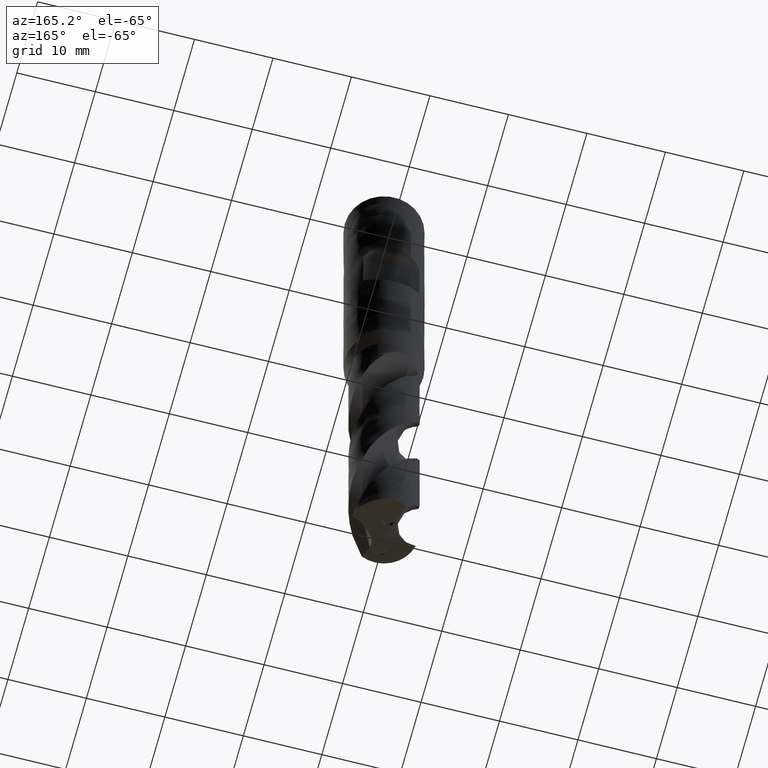
[diagram: clean part render]
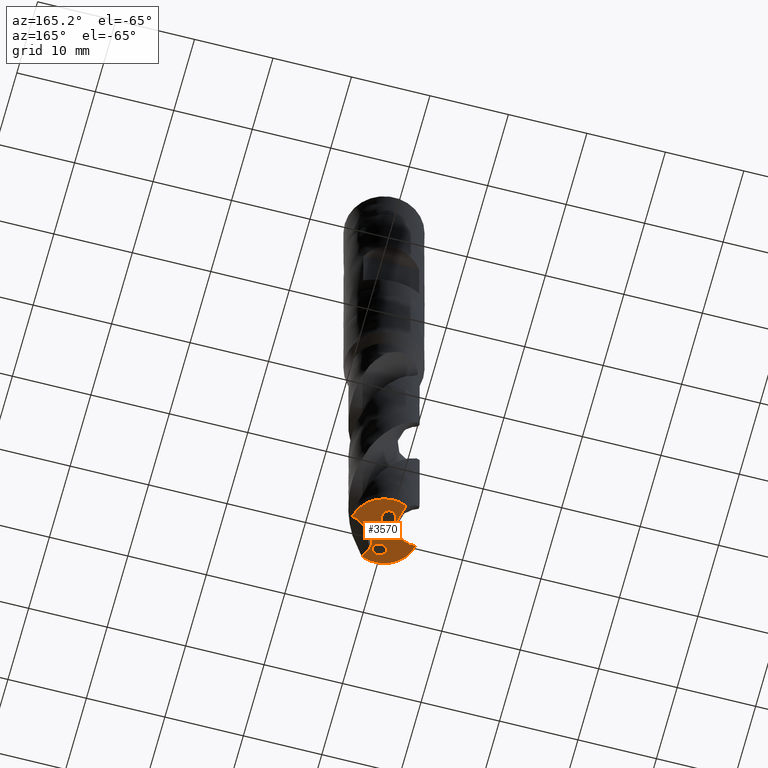
[diagram: same view with one face highlighted and labeled with its STEP entity id]
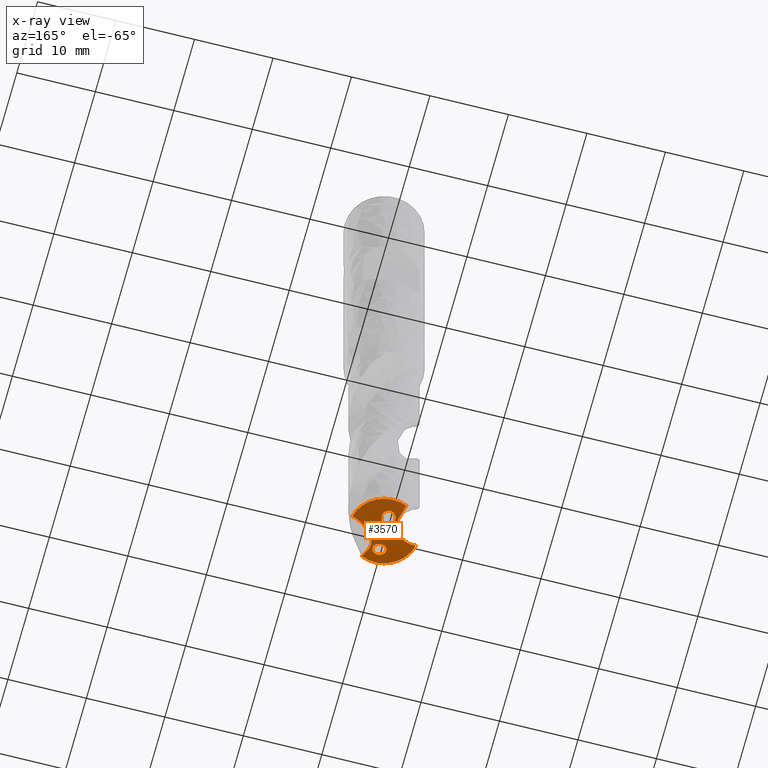
[diagram: x-ray of the same camera — body ghosted, the highlighted face saturated]
A machine part, auxiliary view. The second image highlights one B-rep face of the part: STEP entity #3570.
The next image is the same camera in x-ray: the body ghosted, the highlighted face saturated — about 0% of this face is hidden behind the body in this view.
In plain terms, the highlighted face is a freeform B-spline surface patch.
Its self-contained STEP definition (entity closure, byte-faithful):
#1869 = VERTEX_POINT('', #1870);
#1870 = CARTESIAN_POINT('', (-4.29757426127034, -0.943851401898965, -87.3985309692287));
#1880 = EDGE_CURVE('', #1881, #1869, #1883, .T.);
#1881 = VERTEX_POINT('', #1882);
#1882 = CARTESIAN_POINT('', (1.78144865570595, -4.02323758770016, -87.3985309692287));
#1883 = CIRCLE('', #1884, 4.40000000000001);
#1884 = AXIS2_PLACEMENT_3D('', #1885, #1886, #1887);
#1885 = CARTESIAN_POINT('', (3.2769200452844E-31, 5.35161656008234E-15, -87.3985309692287));
#1886 = DIRECTION('', (3.74939945665464E-33, 6.12323399573677E-17, -1.));
#1887 = DIRECTION('', (-1., 6.12323399573677E-17, 0.));
#2108 = VERTEX_POINT('', #2109);
#2109 = CARTESIAN_POINT('', (-1.20246402972693, 2.34396925418915, -88.0411534819125));
#2158 = EDGE_CURVE('', #2108, #2159, #2161, .T.);
#2159 = VERTEX_POINT('', #2160);
#2160 = CARTESIAN_POINT('', (-2.15518667599995, 5.53361327466962E-15, -88.2155762006489));
#2161 = B_SPLINE_CURVE_WITH_KNOTS('', 3, (#2162, #2163, #2164, #2165, #2166, #2167, #2168, #2169, #2170, #2171, #2172, #2173, #2174, #2175, #2176, #2177, #2178, #2179, #2180, #2181, #2182, #2183, #2184, #2185, #2186, #2187, #2188, #2189, #2190, #2191, #2192, #2193, #2194, #2195, #2196, #2197, #2198, #2199, #2200, #2201, #2202, #2203, #2204, #2205, #2206, #2207, #2208, #2209, #2210, #2211, #2212, #2213, #2214, #2215, #2216, #2217, #2218, #2219, #2220, #2221, #2222, #2223, #2224, #2225), .UNSPECIFIED., .F., .U., (4, 3, 3, 3, 3, 3, 3, 3, 3, 3, 3, 3, 3, 3, 3, 3, 3, 3, 3, 3, 3, 4), (0., 0.197353221583647, 0.394444654133832, 0.52566210150523, 0.656746290882837, 0.787682837162009, 0.918468505827961, 1.04911756140787, 1.17966670904015, 1.31017525377762, 1.44071730584243, 1.57136596770096, 1.70217471512975, 1.8331645082492, 1.9643225420821, 2.09561155928104, 2.22698342550749, 2.35839074453663, 2.48979369149403, 2.54818517279201, 2.58713294390143, 2.73104738893154), .UNSPECIFIED.);
#2162 = CARTESIAN_POINT('', (-1.20246402972693, 2.34396925418915, -88.0411534819125));
#2163 = CARTESIAN_POINT('', (-1.18745235279755, 2.28380885779907, -88.0631299350361));
#2164 = CARTESIAN_POINT('', (-1.17531946354882, 2.22276567823537, -88.0848763407524));
#2165 = CARTESIAN_POINT('', (-1.1662286419976, 2.16119058083328, -88.1061707666283));
#2166 = CARTESIAN_POINT('', (-1.15714987942047, 2.09969716279322, -88.1274369454499));
#2167 = CARTESIAN_POINT('', (-1.15108588070223, 2.03753565146267, -88.1483005036894));
#2168 = CARTESIAN_POINT('', (-1.14815839212197, 1.97508525890182, -88.1684869603736));
#2169 = CARTESIAN_POINT('', (-1.1462093597681, 1.93350769770017, -88.1819264857924));
#2170 = CARTESIAN_POINT('', (-1.14564634276401, 1.89174801583273, -88.1950826026228));
#2171 = CARTESIAN_POINT('', (-1.14649180341457, 1.84992515327138, -88.2078593991515));
#2172 = CARTESIAN_POINT('', (-1.14733640545683, 1.80814476395478, -88.2206232201933));
#2173 = CARTESIAN_POINT('', (-1.14958780168518, 1.76625494245191, -88.2330226058333));
#2174 = CARTESIAN_POINT('', (-1.15325455509853, 1.7243798017518, -88.2449497564735));
#2175 = CARTESIAN_POINT('', (-1.15691717856427, 1.68255182597333, -88.2568634732932));
#2176 = CARTESIAN_POINT('', (-1.16199650829005, 1.64068993955635, -88.2683196566338));
#2177 = CARTESIAN_POINT('', (-1.16848384420454, 1.59892320747831, -88.2792001704585));
#2178 = CARTESIAN_POINT('', (-1.17496370479005, 1.55720460302412, -88.2900681467143));
#2179 = CARTESIAN_POINT('', (-1.18285649568443, 1.51553035991967, -88.300374562078));
#2180 = CARTESIAN_POINT('', (-1.19213237565395, 1.47403399156838, -88.3099950050592));
#2181 = CARTESIAN_POINT('', (-1.20139856643809, 1.43258096853922, -88.3196053989394));
#2182 = CARTESIAN_POINT('', (-1.2120569292352, 1.39125320360711, -88.3285427367806));
#2183 = CARTESIAN_POINT('', (-1.22405264235701, 1.35018738240509, -88.336683761049));
#2184 = CARTESIAN_POINT('', (-1.23603918230055, 1.30915296442979, -88.3448185598378));
#2185 = CARTESIAN_POINT('', (-1.24937677938778, 1.26832680735, -88.3521679986756));
#2186 = CARTESIAN_POINT('', (-1.26398301006403, 1.22784603237205, -88.3586209384972));
#2187 = CARTESIAN_POINT('', (-1.27858469796647, 1.18737784756936, -88.3650718713502));
#2188 = CARTESIAN_POINT('', (-1.29447343799317, 1.14720152533301, -88.3706344933295));
#2189 = CARTESIAN_POINT('', (-1.31153950611966, 1.10744988136886, -88.3752229490989));
#2190 = CARTESIAN_POINT('', (-1.32860995586218, 1.06768803139598, -88.3798125829284));
#2191 = CARTESIAN_POINT('', (-1.34688031374099, 1.02829914392901, -88.3834329037514));
#2192 = CARTESIAN_POINT('', (-1.36621830009042, 0.989405204780282, -88.3860354962684));
#2193 = CARTESIAN_POINT('', (-1.38557207919553, 0.950479502113477, -88.388640214245));
#2194 = CARTESIAN_POINT('', (-1.40601895600249, 0.91200061268252, -88.3902286601404));
#2195 = CARTESIAN_POINT('', (-1.42741343234299, 0.874072823440949, -88.3907968457215));
#2196 = CARTESIAN_POINT('', (-1.44883412362436, 0.836098560766871, -88.391365727508));
#2197 = CARTESIAN_POINT('', (-1.4712290005728, 0.798632348750423, -88.3909129360257));
#2198 = CARTESIAN_POINT('', (-1.4944513158746, 0.761755812927588, -88.3894778594321));
#2199 = CARTESIAN_POINT('', (-1.51770577199416, 0.724828238179386, -88.3880407966224));
#2200 = CARTESIAN_POINT('', (-1.54181355457485, 0.688453264132992, -88.385618083529));
#2201 = CARTESIAN_POINT('', (-1.56663792165826, 0.652688562968723, -88.3822837762158));
#2202 = CARTESIAN_POINT('', (-1.5914941726704, 0.616877926325842, -88.378945186384));
#2203 = CARTESIAN_POINT('', (-1.61709079076099, 0.581646615590946, -88.3746906441216));
#2204 = CARTESIAN_POINT('', (-1.6433087078734, 0.547030880566289, -88.3696159220403));
#2205 = CARTESIAN_POINT('', (-1.66955280798759, 0.512380575905609, -88.3645361319951));
#2206 = CARTESIAN_POINT('', (-1.69643911363165, 0.478320568210164, -88.3586315456883));
#2207 = CARTESIAN_POINT('', (-1.7238693238524, 0.444870671770914, -88.3520066935214));
#2208 = CARTESIAN_POINT('', (-1.75131684371785, 0.41139966700555, -88.3453776607872));
#2209 = CARTESIAN_POINT('', (-1.77932613506058, 0.378518334836724, -88.3380239157761));
#2210 = CARTESIAN_POINT('', (-1.80781899869562, 0.346235664558444, -88.3300486726239));
#2211 = CARTESIAN_POINT('', (-1.83631955158637, 0.313944282284417, -88.3220712772246));
#2212 = CARTESIAN_POINT('', (-1.86531876136612, 0.282235015951598, -88.3134682829298));
#2213 = CARTESIAN_POINT('', (-1.89475569737688, 0.251110924129434, -88.3043352972106));
#2214 = CARTESIAN_POINT('', (-1.92419165398713, 0.21998786784139, -88.2952026153563));
#2215 = CARTESIAN_POINT('', (-1.95407810482133, 0.189436441274821, -88.2855362070908));
#2216 = CARTESIAN_POINT('', (-1.98436781499138, 0.159457389756579, -88.2754210709077));
#2217 = CARTESIAN_POINT('', (-1.99782764284051, 0.146135609183226, -88.2709262114016));
#2218 = CARTESIAN_POINT('', (-2.01136885402852, 0.132925229589993, -88.2663420727986));
#2219 = CARTESIAN_POINT('', (-2.02498798645189, 0.119826301384505, -88.2616753954737));
#2220 = CARTESIAN_POINT('', (-2.03407210010243, 0.111089169765552, -88.2585626695033));
#2221 = CARTESIAN_POINT('', (-2.04319122861304, 0.102401295477995, -88.2554130968149));
#2222 = CARTESIAN_POINT('', (-2.05234443118934, 0.0937627005919325, -88.2522285695812));
#2223 = CARTESIAN_POINT('', (-2.08616608597197, 0.0618425533420451, -88.2404615427023));
#2224 = CARTESIAN_POINT('', (-2.12046040380311, 0.0305875207431743, -88.2282155300756));
#2225 = CARTESIAN_POINT('', (-2.15518667599995, 5.49458199646015E-15, -88.2155762006489));
#2227 = EDGE_CURVE('', #2159, #1869, #2228, .T.);
#2228 = B_SPLINE_CURVE_WITH_KNOTS('', 3, (#2229, #2230, #2231, #2232, #2233, #2234, #2235, #2236, #2237, #2238, #2239, #2240, #2241, #2242, #2243, #2244, #2245, #2246, #2247, #2248, #2249, #2250, #2251, #2252, #2253, #2254, #2255, #2256, #2257, #2258, #2259, #2260, #2261, #2262, #2263, #2264, #2265, #2266, #2267, #2268), .UNSPECIFIED., .F., .U., (4, 3, 3, 3, 3, 3, 3, 3, 3, 3, 3, 3, 3, 4), (0., 0.199177144992755, 0.397727615430797, 0.595773342674209, 0.793411931839632, 0.990718490923968, 1.18774961578698, 1.3845474053681, 1.58114283059171, 1.77755835378937, 1.97380988836588, 2.16990823077142, 2.36586008643327, 2.51905914120456), .UNSPECIFIED.);
#2229 = CARTESIAN_POINT('', (-2.15518667599995, 5.49458199646015E-15, -88.2155762006489));
#2230 = CARTESIAN_POINT('', (-2.2032477288773, -0.0423330337184393, -88.1980834079741));
#2231 = CARTESIAN_POINT('', (-2.25216276372691, -0.0834116221742633, -88.1798289112818));
#2232 = CARTESIAN_POINT('', (-2.30184756635348, -0.1232200129029, -88.160996472284));
#2233 = CARTESIAN_POINT('', (-2.35137604481161, -0.162903153791578, -88.1422232861203));
#2234 = CARTESIAN_POINT('', (-2.40169877274952, -0.201347087963768, -88.1228642258759));
#2235 = CARTESIAN_POINT('', (-2.45274783587766, -0.238523651673692, -88.1030614323262));
#2236 = CARTESIAN_POINT('', (-2.50366712511431, -0.275605707334902, -88.0833089802604));
#2237 = CARTESIAN_POINT('', (-2.55533663349539, -0.311446555316862, -88.0631039215881));
#2238 = CARTESIAN_POINT('', (-2.60769604688651, -0.346006033337344, -88.042557716602));
#2239 = CARTESIAN_POINT('', (-2.65994782093983, -0.380494464738171, -88.0220537500551));
#2240 = CARTESIAN_POINT('', (-2.71291375700995, -0.413724412187377, -88.0011990555789));
#2241 = CARTESIAN_POINT('', (-2.76653567895121, -0.445644839602825, -87.9800829897211));
#2242 = CARTESIAN_POINT('', (-2.82006751680937, -0.477511641144157, -87.9590023985604));
#2243 = CARTESIAN_POINT('', (-2.87428064450932, -0.508089496922039, -87.9376502131017));
#2244 = CARTESIAN_POINT('', (-2.92911538462584, -0.537317675988113, -87.9161001120934));
#2245 = CARTESIAN_POINT('', (-2.98387357703906, -0.566505053365793, -87.8945800943997));
#2246 = CARTESIAN_POINT('', (-3.03928024961351, -0.594361606226445, -87.8728512756975));
#2247 = CARTESIAN_POINT('', (-3.09527155538946, -0.620817943985146, -87.8509764119038));
#2248 = CARTESIAN_POINT('', (-3.15119655312841, -0.64724295066845, -87.8291274535478));
#2249 = CARTESIAN_POINT('', (-3.2077350585995, -0.672285214123321, -87.8071208337782));
#2250 = CARTESIAN_POINT('', (-3.26481685923435, -0.695867569524541, -87.7850119242263));
#2251 = CARTESIAN_POINT('', (-3.32183996346852, -0.719425675526366, -87.7629257489506));
#2252 = CARTESIAN_POINT('', (-3.37943766183317, -0.74154013187791, -87.7407248414663));
#2253 = CARTESIAN_POINT('', (-3.43753136044878, -0.76212680422566, -87.7184598686163));
#2254 = CARTESIAN_POINT('', (-3.49557189824407, -0.782694637965855, -87.6962152701658));
#2255 = CARTESIAN_POINT('', (-3.55414257975729, -0.801749763750774, -87.6738932251768));
#2256 = CARTESIAN_POINT('', (-3.61315442315015, -0.819201900753114, -87.6515417772151));
#2257 = CARTESIAN_POINT('', (-3.67211699716414, -0.836639466850688, -87.6292089906253));
#2258 = CARTESIAN_POINT('', (-3.73155815860719, -0.852487851232482, -87.6068323557481));
#2259 = CARTESIAN_POINT('', (-3.79137644252048, -0.866651582206272, -87.5844589600024));
#2260 = CARTESIAN_POINT('', (-3.85114803282295, -0.880804257099906, -87.5621030287267));
#2261 = CARTESIAN_POINT('', (-3.91133791462464, -0.893284616594487, -87.5397346918607));
#2262 = CARTESIAN_POINT('', (-3.9718299101374, -0.903993213101, -87.5174014583985));
#2263 = CARTESIAN_POINT('', (-4.03227671773406, -0.914693810215919, -87.4950849080076));
#2264 = CARTESIAN_POINT('', (-4.09307103551066, -0.923633194932795, -87.4727864746532));
#2265 = CARTESIAN_POINT('', (-4.15407960722811, -0.930709558251278, -87.4505552576876));
#2266 = CARTESIAN_POINT('', (-4.2017773209777, -0.936241999717311, -87.4331744504784));
#2267 = CARTESIAN_POINT('', (-4.24963289377573, -0.940638909756746, -87.4158248248353));
#2268 = CARTESIAN_POINT('', (-4.29757426127034, -0.943851401898973, -87.3985309692287));
#2693 = VERTEX_POINT('', #2694);
#2694 = CARTESIAN_POINT('', (-1.78144865570594, 4.02323758770018, -87.3985309692287));
#2740 = EDGE_CURVE('', #2108, #2693, #2741, .T.);
#2741 = B_SPLINE_CURVE_WITH_KNOTS('', 3, (#2742, #2743, #2744, #2745, #2746, #2747, #2748, #2749, #2750, #2751, #2752, #2753, #2754, #2755, #2756, #2757, #2758, #2759, #2760, #2761, #2762, #2763, #2764, #2765, #2766), .UNSPECIFIED., .F., .U., (4, 3, 3, 3, 3, 3, 3, 3, 4), (0., 0.197220917243828, 0.394404132327731, 0.591560747961897, 0.78869898369826, 0.985824981796617, 1.28155539122529, 1.57727492336307, 1.89103544357467), .UNSPECIFIED.);
#2742 = CARTESIAN_POINT('', (-1.20246402972693, 2.34396925418915, -88.0411534819125));
#2743 = CARTESIAN_POINT('', (-1.21746564292393, 2.40408931943357, -88.0191917616628));
#2744 = CARTESIAN_POINT('', (-1.23301402807309, 2.46404683342978, -87.9971511004964));
#2745 = CARTESIAN_POINT('', (-1.2491050450918, 2.52383341463656, -87.9750506100325));
#2746 = CARTESIAN_POINT('', (-1.2651929860367, 2.58360856661322, -87.9529543444564));
#2747 = CARTESIAN_POINT('', (-1.28182456449467, 2.64321735365864, -87.9307965204881));
#2748 = CARTESIAN_POINT('', (-1.29899516528219, 2.70265038497415, -87.9085924477235));
#2749 = CARTESIAN_POINT('', (-1.31616344980495, 2.76207539894433, -87.8863913702245));
#2750 = CARTESIAN_POINT('', (-1.33387189345569, 2.8213291378275, -87.8641423387874));
#2751 = CARTESIAN_POINT('', (-1.35211546569734, 2.88040150342007, -87.8418578640105));
#2752 = CARTESIAN_POINT('', (-1.37035733718453, 2.93946836199966, -87.8195754667005));
#2753 = CARTESIAN_POINT('', (-1.38913558844789, 2.99835825122333, -87.7972559403433));
#2754 = CARTESIAN_POINT('', (-1.40844481578904, 3.05706058661714, -87.7749097002458));
#2755 = CARTESIAN_POINT('', (-1.42775284448227, 3.1157592779795, -87.7525648473231));
#2756 = CARTESIAN_POINT('', (-1.44759320221084, 3.17427474900311, -87.7301916115522));
#2757 = CARTESIAN_POINT('', (-1.46796014341187, 3.23259609297933, -87.7077988150602));
#2758 = CARTESIAN_POINT('', (-1.49851483390575, 3.32009036110682, -87.6742049160378));
#2759 = CARTESIAN_POINT('', (-1.53025897007221, 3.40715968393384, -87.6405625876772));
#2760 = CARTESIAN_POINT('', (-1.5631718219402, 3.4937664519121, -87.6068966101904));
#2761 = CARTESIAN_POINT('', (-1.59608346323717, 3.58037003439784, -87.5732318709753));
#2762 = CARTESIAN_POINT('', (-1.6301690751251, 3.66652513923916, -87.539537910614));
#2763 = CARTESIAN_POINT('', (-1.6654064651807, 3.75219381403028, -87.5058351540465));
#2764 = CARTESIAN_POINT('', (-1.70279358585824, 3.84308888536354, -87.4700762903802));
#2765 = CARTESIAN_POINT('', (-1.74148332022534, 3.93345099196653, -87.4343017156904));
#2766 = CARTESIAN_POINT('', (-1.78144865570594, 4.02323758770018, -87.3985309692287));
#2966 = VERTEX_POINT('', #2967);
#2967 = CARTESIAN_POINT('', (1.20246402972693, -2.34396925418914, -88.0411534819125));
#3016 = EDGE_CURVE('', #2966, #3017, #3019, .T.);
#3017 = VERTEX_POINT('', #3018);
#3018 = CARTESIAN_POINT('', (4.29757426127034, 0.943851401898992, -87.3985309692287));
#3019 = B_SPLINE_CURVE_WITH_KNOTS('', 3, (#3020, #3021, #3022, #3023, #3024, #3025, #3026, #3027, #3028, #3029, #3030, #3031, #3032, #3033, #3034, #3035, #3036, #3037, #3038, #3039, #3040, #3041, #3042, #3043, #3044, #3045, #3046, #3047, #3048, #3049, #3050, #3051, #3052, #3053, #3054, #3055, #3056, #3057, #3058, #3059, #3060, #3061, #3062, #3063, #3064, #3065, #3066, #3067, #3068, #3069, #3070, #3071, #3072, #3073, #3074, #3075, #3076, #3077, #3078, #3079, #3080, #3081, #3082, #3083, #3084, #3085, #3086, #3087, #3088, #3089, #3090, #3091, #3092, #3093, #3094, #3095, #3096, #3097, #3098, #3099, #3100, #3101, #3102, #3103, #3104, #3105, #3106, #3107, #3108, #3109, #3110, #3111, #3112, #3113, #3114, #3115, #3116, #3117, #3118, #3119, #3120, #3121, #3122, #3123, #3124, #3125), .UNSPECIFIED., .F., .U., (4, 3, 3, 3, 3, 3, 3, 3, 3, 3, 3, 3, 3, 3, 3, 3, 3, 3, 3, 3, 3, 3, 3, 3, 3, 3, 3, 3, 3, 3, 3, 3, 3, 3, 3, 4), (0., 0.197353221583641, 0.394444654133825, 0.525662101505223, 0.656746290882831, 0.787682837162001, 0.918468505827952, 1.04911756140786, 1.17966670904014, 1.31017525377761, 1.44071730584241, 1.57136596770095, 1.70217471512973, 1.83316450824919, 1.96432254208209, 2.09561155928103, 2.22698342550748, 2.35839074453662, 2.48979369149402, 2.548185172792, 2.58713294390142, 2.71912205255136, 2.74509890670029, 2.94422746633201, 3.14273868453394, 3.34075283152224, 3.53836582343269, 3.7356513268657, 3.93266479123668, 4.12944743056486, 4.32602953934147, 4.52243306154669, 4.7186735087955, 4.91476135999368, 5.11070306264767, 5.25011133116476), .UNSPECIFIED.);
#3020 = CARTESIAN_POINT('', (1.20246402972692, -2.34396925418914, -88.0411534819125));
#3021 = CARTESIAN_POINT('', (1.18745235279755, -2.28380885779906, -88.0631299350361));
#3022 = CARTESIAN_POINT('', (1.17531946354882, -2.22276567823536, -88.0848763407524));
#3023 = CARTESIAN_POINT('', (1.1662286419976, -2.16119058083327, -88.1061707666283));
#3024 = CARTESIAN_POINT('', (1.15714987942047, -2.09969716279321, -88.1274369454499));
#3025 = CARTESIAN_POINT('', (1.15108588070223, -2.03753565146266, -88.1483005036894));
#3026 = CARTESIAN_POINT('', (1.14815839212197, -1.97508525890182, -88.1684869603736));
#3027 = CARTESIAN_POINT('', (1.1462093597681, -1.93350769770017, -88.1819264857924));
#3028 = CARTESIAN_POINT('', (1.14564634276401, -1.89174801583273, -88.1950826026228));
#3029 = CARTESIAN_POINT('', (1.14649180341457, -1.84992515327137, -88.2078593991515));
#3030 = CARTESIAN_POINT('', (1.14733640545683, -1.80814476395477, -88.2206232201933));
#3031 = CARTESIAN_POINT('', (1.14958780168518, -1.7662549424519, -88.2330226058333));
#3032 = CARTESIAN_POINT('', (1.15325455509854, -1.72437980175179, -88.2449497564735));
#3033 = CARTESIAN_POINT('', (1.15691717856428, -1.68255182597332, -88.2568634732932));
#3034 = CARTESIAN_POINT('', (1.16199650829004, -1.64068993955635, -88.2683196566338));
#3035 = CARTESIAN_POINT('', (1.16848384420453, -1.5989232074783, -88.2792001704585));
#3036 = CARTESIAN_POINT('', (1.17496370479005, -1.55720460302411, -88.2900681467143));
#3037 = CARTESIAN_POINT('', (1.18285649568443, -1.51553035991967, -88.300374562078));
#3038 = CARTESIAN_POINT('', (1.19213237565395, -1.47403399156837, -88.3099950050592));
#3039 = CARTESIAN_POINT('', (1.20139856643809, -1.43258096853922, -88.3196053989394));
#3040 = CARTESIAN_POINT('', (1.2120569292352, -1.3912532036071, -88.3285427367806));
#3041 = CARTESIAN_POINT('', (1.22405264235701, -1.35018738240508, -88.336683761049));
#3042 = CARTESIAN_POINT('', (1.23603918230055, -1.30915296442979, -88.3448185598378));
#3043 = CARTESIAN_POINT('', (1.24937677938777, -1.26832680734999, -88.3521679986756));
#3044 = CARTESIAN_POINT('', (1.26398301006402, -1.22784603237205, -88.3586209384972));
#3045 = CARTESIAN_POINT('', (1.27858469796647, -1.18737784756935, -88.3650718713502));
#3046 = CARTESIAN_POINT('', (1.29447343799316, -1.14720152533301, -88.3706344933295));
#3047 = CARTESIAN_POINT('', (1.31153950611965, -1.10744988136886, -88.3752229490989));
#3048 = CARTESIAN_POINT('', (1.32860995586217, -1.06768803139598, -88.3798125829284));
#3049 = CARTESIAN_POINT('', (1.34688031374099, -1.02829914392901, -88.3834329037514));
#3050 = CARTESIAN_POINT('', (1.36621830009041, -0.989405204780282, -88.3860354962684));
#3051 = CARTESIAN_POINT('', (1.38557207919552, -0.950479502113476, -88.388640214245));
#3052 = CARTESIAN_POINT('', (1.40601895600249, -0.912000612682519, -88.3902286601404));
#3053 = CARTESIAN_POINT('', (1.42741343234299, -0.874072823440948, -88.3907968457215));
#3054 = CARTESIAN_POINT('', (1.44883412362435, -0.83609856076687, -88.391365727508));
#3055 = CARTESIAN_POINT('', (1.47122900057279, -0.798632348750421, -88.3909129360257));
#3056 = CARTESIAN_POINT('', (1.49445131587459, -0.761755812927587, -88.389477859432));
#3057 = CARTESIAN_POINT('', (1.51770577199416, -0.724828238179384, -88.3880407966224));
#3058 = CARTESIAN_POINT('', (1.54181355457485, -0.68845326413299, -88.385618083529));
#3059 = CARTESIAN_POINT('', (1.56663792165825, -0.652688562968722, -88.3822837762158));
#3060 = CARTESIAN_POINT('', (1.5914941726704, -0.61687792632584, -88.378945186384));
#3061 = CARTESIAN_POINT('', (1.61709079076098, -0.581646615590944, -88.3746906441216));
#3062 = CARTESIAN_POINT('', (1.64330870787339, -0.547030880566288, -88.3696159220403));
#3063 = CARTESIAN_POINT('', (1.66955280798758, -0.512380575905607, -88.3645361319951));
#3064 = CARTESIAN_POINT('', (1.69643911363165, -0.478320568210162, -88.3586315456883));
#3065 = CARTESIAN_POINT('', (1.72386932385239, -0.444870671770913, -88.3520066935214));
#3066 = CARTESIAN_POINT('', (1.75131684371784, -0.411399667005547, -88.3453776607872));
#3067 = CARTESIAN_POINT('', (1.77932613506057, -0.378518334836721, -88.3380239157761));
#3068 = CARTESIAN_POINT('', (1.80781899869562, -0.346235664558439, -88.3300486726239));
#3069 = CARTESIAN_POINT('', (1.83631955158637, -0.313944282284414, -88.3220712772246));
#3070 = CARTESIAN_POINT('', (1.86531876136611, -0.282235015951596, -88.3134682829298));
#3071 = CARTESIAN_POINT('', (1.89475569737687, -0.251110924129433, -88.3043352972106));
#3072 = CARTESIAN_POINT('', (1.92419165398712, -0.219987867841388, -88.2952026153563));
#3073 = CARTESIAN_POINT('', (1.95407810482133, -0.189436441274817, -88.2855362070908));
#3074 = CARTESIAN_POINT('', (1.98436781499137, -0.159457389756575, -88.2754210709077));
#3075 = CARTESIAN_POINT('', (1.9978276428405, -0.146135609183219, -88.2709262114016));
#3076 = CARTESIAN_POINT('', (2.01136885402851, -0.132925229589987, -88.2663420727986));
#3077 = CARTESIAN_POINT('', (2.02498798645188, -0.119826301384496, -88.2616753954737));
#3078 = CARTESIAN_POINT('', (2.03407210010242, -0.111089169765544, -88.2585626695032));
#3079 = CARTESIAN_POINT('', (2.04319122861303, -0.102401295477984, -88.2554130968148));
#3080 = CARTESIAN_POINT('', (2.05234443118933, -0.0937627005919225, -88.2522285695812));
#3081 = CARTESIAN_POINT('', (2.08336348606525, -0.0644875865989804, -88.2414366064195));
#3082 = CARTESIAN_POINT('', (2.11477978599508, -0.0357723362426528, -88.2302417426097));
#3083 = CARTESIAN_POINT('', (2.14656163145427, -0.00761871873572564, -88.218710539114));
#3084 = CARTESIAN_POINT('', (2.1528166351627, -0.00207778870579595, -88.2164410761679));
#3085 = CARTESIAN_POINT('', (2.15908603756462, 0.0034415803036229, -88.2141584743933));
#3086 = CARTESIAN_POINT('', (2.1653696254973, 0.00893936621641404, -88.2118631940613));
#3087 = CARTESIAN_POINT('', (2.21353719063743, 0.0510832757021928, -88.1942684590012));
#3088 = CARTESIAN_POINT('', (2.2625537878159, 0.0919744034376307, -88.1759260630772));
#3089 = CARTESIAN_POINT('', (2.31233673420204, 0.131596145107035, -88.1570164365259));
#3090 = CARTESIAN_POINT('', (2.36196534273047, 0.171095050842217, -88.1381654338903));
#3091 = CARTESIAN_POINT('', (2.41238469896909, 0.209355153870015, -88.1187391896222));
#3092 = CARTESIAN_POINT('', (2.46352766036684, 0.246347417598018, -88.0988773527771));
#3093 = CARTESIAN_POINT('', (2.51454256001511, 0.283247052861025, -88.0790652498838));
#3094 = CARTESIAN_POINT('', (2.56630494776876, 0.31890473848623, -88.0588086261443));
#3095 = CARTESIAN_POINT('', (2.61875481112371, 0.353279506907145, -88.0382171322748));
#3096 = CARTESIAN_POINT('', (2.67109841677266, 0.387584635794162, -88.0176673545274));
#3097 = CARTESIAN_POINT('', (2.72415380915539, 0.420629544467259, -87.9967730790488));
#3098 = CARTESIAN_POINT('', (2.77786281041846, 0.452362476829538, -87.9756223704845));
#3099 = CARTESIAN_POINT('', (2.83148280397571, 0.484042820697488, -87.9545067133269));
#3100 = CARTESIAN_POINT('', (2.88578180480871, 0.514431625426537, -87.9331243549279));
#3101 = CARTESIAN_POINT('', (2.940699921519, 0.543467518410595, -87.9115480658706));
#3102 = CARTESIAN_POINT('', (2.99554231105877, 0.572463373495492, -87.890001528586));
#3103 = CARTESIAN_POINT('', (3.05103081153393, 0.600125063008732, -87.868250126352));
#3104 = CARTESIAN_POINT('', (3.10710119624017, 0.626382621412139, -87.8463559911309));
#3105 = CARTESIAN_POINT('', (3.16310588772594, 0.652609415917953, -87.8244875075306));
#3106 = CARTESIAN_POINT('', (3.21972149510875, 0.67744946202786, -87.8024646198101));
#3107 = CARTESIAN_POINT('', (3.27687728077516, 0.700825078221795, -87.7803422888784));
#3108 = CARTESIAN_POINT('', (3.33397482206969, 0.724176873588726, -87.7582425016185));
#3109 = CARTESIAN_POINT('', (3.39164402701383, 0.746080414609278, -87.7360307664759));
#3110 = CARTESIAN_POINT('', (3.44980563657343, 0.766451106326461, -87.713757503175));
#3111 = CARTESIAN_POINT('', (3.50791440875886, 0.78680329212765, -87.6915044741963));
#3112 = CARTESIAN_POINT('', (3.56654994554638, 0.805637619479701, -87.6691764651908));
#3113 = CARTESIAN_POINT('', (3.625622456111, 0.822863408491934, -87.6468214018044));
#3114 = CARTESIAN_POINT('', (3.68464591843566, 0.840074894834026, -87.6244848999536));
#3115 = CARTESIAN_POINT('', (3.74414402828812, 0.855691554347244, -87.6021068184796));
#3116 = CARTESIAN_POINT('', (3.80401435939126, 0.869617591778058, -87.5797342321987));
#3117 = CARTESIAN_POINT('', (3.86383813548394, 0.883532800359149, -87.5573790427814));
#3118 = CARTESIAN_POINT('', (3.92407558345647, 0.895769610864301, -87.535013614082));
#3119 = CARTESIAN_POINT('', (3.98460940182354, 0.906228351028987, -87.5126855309176));
#3120 = CARTESIAN_POINT('', (4.045098103018, 0.916679296066949, -87.4903740893597));
#3121 = CARTESIAN_POINT('', (4.10592888741643, 0.925362580223132, -87.4680829070333));
#3122 = CARTESIAN_POINT('', (4.16696720427989, 0.93217630247245, -87.4458612349009));
#3123 = CARTESIAN_POINT('', (4.21039464188953, 0.93702411796077, -87.4300509975009));
#3124 = CARTESIAN_POINT('', (4.25394851538867, 0.940928094259521, -87.4142680537015));
#3125 = CARTESIAN_POINT('', (4.29757426127034, 0.943851401898992, -87.3985309692287));
#3424 = EDGE_CURVE('', #2966, #1881, #3425, .T.);
#3425 = B_SPLINE_CURVE_WITH_KNOTS('', 3, (#3426, #3427, #3428, #3429, #3430, #3431, #3432, #3433, #3434, #3435, #3436, #3437, #3438, #3439, #3440, #3441, #3442, #3443, #3444, #3445, #3446, #3447, #3448, #3449, #3450), .UNSPECIFIED., .F., .U., (4, 3, 3, 3, 3, 3, 3, 3, 4), (0., 0.197220917243826, 0.394404132327721, 0.591560747961893, 0.788698983698252, 0.985824981796603, 1.28155539122528, 1.57727492336305, 1.89103544357466), .UNSPECIFIED.);
#3426 = CARTESIAN_POINT('', (1.20246402972693, -2.34396925418914, -88.0411534819125));
#3427 = CARTESIAN_POINT('', (1.21746564292393, -2.40408931943356, -88.0191917616628));
#3428 = CARTESIAN_POINT('', (1.23301402807309, -2.46404683342978, -87.9971511004964));
#3429 = CARTESIAN_POINT('', (1.2491050450918, -2.52383341463655, -87.9750506100325));
#3430 = CARTESIAN_POINT('', (1.2651929860367, -2.58360856661321, -87.9529543444564));
#3431 = CARTESIAN_POINT('', (1.28182456449467, -2.64321735365863, -87.9307965204881));
#3432 = CARTESIAN_POINT('', (1.29899516528218, -2.70265038497414, -87.9085924477235));
#3433 = CARTESIAN_POINT('', (1.31616344980494, -2.76207539894432, -87.8863913702245));
#3434 = CARTESIAN_POINT('', (1.33387189345569, -2.82132913782748, -87.8641423387874));
#3435 = CARTESIAN_POINT('', (1.35211546569734, -2.88040150342006, -87.8418578640105));
#3436 = CARTESIAN_POINT('', (1.37035733718454, -2.93946836199964, -87.8195754667005));
#3437 = CARTESIAN_POINT('', (1.38913558844789, -2.99835825122332, -87.7972559403433));
#3438 = CARTESIAN_POINT('', (1.40844481578904, -3.05706058661712, -87.7749097002458));
#3439 = CARTESIAN_POINT('', (1.42775284448227, -3.11575927797948, -87.7525648473231));
#3440 = CARTESIAN_POINT('', (1.44759320221084, -3.17427474900309, -87.7301916115522));
#3441 = CARTESIAN_POINT('', (1.46796014341188, -3.2325960929793, -87.7077988150602));
#3442 = CARTESIAN_POINT('', (1.49851483390576, -3.3200903611068, -87.6742049160378));
#3443 = CARTESIAN_POINT('', (1.53025897007221, -3.40715968393381, -87.6405625876772));
#3444 = CARTESIAN_POINT('', (1.5631718219402, -3.49376645191208, -87.6068966101904));
#3445 = CARTESIAN_POINT('', (1.59608346323717, -3.58037003439782, -87.5732318709753));
#3446 = CARTESIAN_POINT('', (1.63016907512509, -3.66652513923915, -87.539537910614));
#3447 = CARTESIAN_POINT('', (1.66540646518068, -3.75219381403027, -87.5058351540466));
#3448 = CARTESIAN_POINT('', (1.70279358585823, -3.84308888536353, -87.4700762903803));
#3449 = CARTESIAN_POINT('', (1.74148332022535, -3.93345099196651, -87.4343017156904));
#3450 = CARTESIAN_POINT('', (1.78144865570594, -4.02323758770016, -87.3985309692287));
#3570 = ADVANCED_FACE('', (#3571, #3595, #3816), #4037, .T.);
#3571 = FACE_OUTER_BOUND('', #3572, .T.);
#3572 = EDGE_LOOP('', (#3573, #3574, #3582, #3583, #3584, #3585, #3592, #3593, #3594));
#3573 = ORIENTED_EDGE('', *, *, #2227, .F.);
#3574 = ORIENTED_EDGE('', *, *, #3575, .T.);
#3575 = EDGE_CURVE('', #2159, #3576, #3578, .T.);
#3576 = VERTEX_POINT('', #3577);
#3577 = CARTESIAN_POINT('', (3.33696551642263E-31, 5.44967825620572E-15, -89.));
#3578 = LINE('', #3579, #3580);
#3579 = CARTESIAN_POINT('', (-2.15518667599995, 5.53361327466962E-15, -88.2155762006489));
#3580 = VECTOR('', #3581, 2.29350175613539);
#3581 = DIRECTION('', (2.15518667599995, -8.39350184639013E-17, -0.784423799351103));
#3582 = ORIENTED_EDGE('', *, *, #3575, .F.);
#3583 = ORIENTED_EDGE('', *, *, #2158, .F.);
#3584 = ORIENTED_EDGE('', *, *, #2740, .T.);
#3585 = ORIENTED_EDGE('', *, *, #3586, .T.);
#3586 = EDGE_CURVE('', #2693, #3017, #3587, .T.);
#3587 = CIRCLE('', #3588, 4.40000000000001);
#3588 = AXIS2_PLACEMENT_3D('', #3589, #3590, #3591);
#3589 = CARTESIAN_POINT('', (3.2769200452844E-31, 5.35161656008234E-15, -87.3985309692287));
#3590 = DIRECTION('', (3.74939945665464E-33, 6.12323399573677E-17, -1.));
#3591 = DIRECTION('', (-1., 6.12323399573677E-17, 0.));
#3592 = ORIENTED_EDGE('', *, *, #3016, .F.);
#3593 = ORIENTED_EDGE('', *, *, #3424, .T.);
#3594 = ORIENTED_EDGE('', *, *, #1880, .T.);
#3595 = FACE_BOUND('', #3596, .T.);
#3596 = EDGE_LOOP('', (#3597, #3707));
#3597 = ORIENTED_EDGE('', *, *, #3598, .F.);
#3598 = EDGE_CURVE('', #3599, #3601, #3603, .T.);
#3599 = VERTEX_POINT('', #3600);
#3600 = CARTESIAN_POINT('', (-0.880000000000008, 2.2, -88.1375825335775));
#3601 = VERTEX_POINT('', #3602);
#3602 = CARTESIAN_POINT('', (0.879999999999993, 2.20000000000001, -88.1375825335775));
#3603 = B_SPLINE_CURVE_WITH_KNOTS('', 3, (#3604, #3605, #3606, #3607, #3608, #3609, #3610, #3611, #3612, #3613, #3614, #3615, #3616, #3617, #3618, #3619, #3620, #3621, #3622, #3623, #3624, #3625, #3626, #3627, #3628, #3629, #3630, #3631, #3632, #3633, #3634, #3635, #3636, #3637, #3638, #3639, #3640, #3641, #3642, #3643, #3644, #3645, #3646, #3647, #3648, #3649, #3650, #3651, #3652, #3653, #3654, #3655, #3656, #3657, #3658, #3659, #3660, #3661, #3662, #3663, #3664, #3665, #3666, #3667, #3668, #3669, #3670, #3671, #3672, #3673, #3674, #3675, #3676, #3677, #3678, #3679, #3680, #3681, #3682, #3683, #3684, #3685, #3686, #3687, #3688, #3689, #3690, #3691, #3692, #3693, #3694, #3695, #3696, #3697, #3698, #3699, #3700, #3701, #3702, #3703, #3704, #3705, #3706), .UNSPECIFIED., .F., .U., (4, 3, 3, 3, 3, 3, 3, 3, 3, 3, 3, 3, 3, 3, 3, 3, 3, 3, 3, 3, 3, 3, 3, 3, 3, 3, 3, 3, 3, 3, 3, 3, 3, 3, 4), (0., 0.133313130256292, 0.266377784293513, 0.399186562198718, 0.487279255416084, 0.575278538525817, 0.663174582359741, 0.750956740285504, 0.838614024654341, 0.926135586504852, 1.01351118684143, 1.10073164169662, 1.18778921874782, 1.27467796121264, 1.36139391558836, 1.40011084183425, 1.41162420053208, 1.42317374145515, 1.51190636909655, 1.60045016256369, 1.68880828902483, 1.77698601965269, 1.86499063380727, 1.95283119433459, 2.04051822232322, 2.12806330138742, 2.2154786400347, 2.30277661649364, 2.38996932437665, 2.47706813063693, 2.56408325023041, 2.65102333528402, 2.73789507075243, 2.79593651616089, 2.82450258070259), .UNSPECIFIED.);
#3604 = CARTESIAN_POINT('', (-0.880000000000008, 2.2, -88.1375825335775));
#3605 = CARTESIAN_POINT('', (-0.880000000000008, 2.2420987986219, -88.1233557548757));
#3606 = CARTESIAN_POINT('', (-0.876965174593062, 2.28440604733651, -88.1094128392869));
#3607 = CARTESIAN_POINT('', (-0.870888904586767, 2.32630326942592, -88.0959068479631));
#3608 = CARTESIAN_POINT('', (-0.864823959860993, 2.36812240120783, -88.0824260298361));
#3609 = CARTESIAN_POINT('', (-0.855698906381018, 2.40973332819908, -88.0693156294705));
#3610 = CARTESIAN_POINT('', (-0.843592614664983, 2.45050249596105, -88.0567192627016));
#3611 = CARTESIAN_POINT('', (-0.831509602693067, 2.49119326681868, -88.0441471180646));
#3612 = CARTESIAN_POINT('', (-0.816396263400835, 2.53124585302848, -88.0320248298509));
#3613 = CARTESIAN_POINT('', (-0.798425057405125, 2.57002355020679, -88.0204869449199));
#3614 = CARTESIAN_POINT('', (-0.786504671106141, 2.59574498093664, -88.0128338110409));
#3615 = CARTESIAN_POINT('', (-0.77329710572428, 2.62097836157538, -88.0054157709843));
#3616 = CARTESIAN_POINT('', (-0.758877073502308, 2.64553965851767, -87.998269902968));
#3617 = CARTESIAN_POINT('', (-0.744472331728531, 2.67007491160425, -87.9911316121556));
#3618 = CARTESIAN_POINT('', (-0.728824509969421, 2.69399574732549, -87.9842485146067));
#3619 = CARTESIAN_POINT('', (-0.712028254197653, 2.71712258239585, -87.977655661128));
#3620 = CARTESIAN_POINT('', (-0.695251703510074, 2.74022228545309, -87.9710705422739));
#3621 = CARTESIAN_POINT('', (-0.677290002638443, 2.76258387462167, -87.9647595471672));
#3622 = CARTESIAN_POINT('', (-0.658257846912567, 2.78403476521316, -87.9587554597356));
#3623 = CARTESIAN_POINT('', (-0.639250350935237, 2.80545786212875, -87.9527591517321));
#3624 = CARTESIAN_POINT('', (-0.619129681668898, 2.82602368611002, -87.9470546250574));
#3625 = CARTESIAN_POINT('', (-0.598030272207855, 2.84556935609013, -87.9416721163598));
#3626 = CARTESIAN_POINT('', (-0.576960877482957, 2.86508722158935, -87.9362972644916));
#3627 = CARTESIAN_POINT('', (-0.554864219650167, 2.88363518557676, -87.9312304387965));
#3628 = CARTESIAN_POINT('', (-0.531893677392626, 2.90106284736067, -87.9264990232087));
#3629 = CARTESIAN_POINT('', (-0.508958701144972, 2.9184635253501, -87.9217749334198));
#3630 = CARTESIAN_POINT('', (-0.485095821259869, 2.9347902551899, -87.9173735383181));
#3631 = CARTESIAN_POINT('', (-0.460476055385828, 2.94990786261786, -87.9133190558274));
#3632 = CARTESIAN_POINT('', (-0.435897348403145, 2.9650002581001, -87.9092713350808));
#3633 = CARTESIAN_POINT('', (-0.410502667889884, 2.97892526977567, -87.9055592265603));
#3634 = CARTESIAN_POINT('', (-0.38447884137597, 2.99156555037094, -87.90220347901));
#3635 = CARTESIAN_POINT('', (-0.358501223175092, 3.00418338668645, -87.8988536899774));
#3636 = CARTESIAN_POINT('', (-0.331830854931966, 3.01555293139075, -87.8958505070422));
#3637 = CARTESIAN_POINT('', (-0.304668045047482, 3.02557699963533, -87.8932109346817));
#3638 = CARTESIAN_POINT('', (-0.277555959718743, 3.03558234866748, -87.8905762915291));
#3639 = CARTESIAN_POINT('', (-0.249883985428354, 3.04427273854376, -87.8882971666555));
#3640 = CARTESIAN_POINT('', (-0.221863137581946, 3.05157310207772, -87.8863865900646));
#3641 = CARTESIAN_POINT('', (-0.193896631797613, 3.05885930769574, -87.8844797187388));
#3642 = CARTESIAN_POINT('', (-0.165510746643525, 3.06477954758199, -87.8829350644728));
#3643 = CARTESIAN_POINT('', (-0.136924071959483, 3.06928234683447, -87.8817615118549));
#3644 = CARTESIAN_POINT('', (-0.108394245110409, 3.07377619176149, -87.8805902929791));
#3645 = CARTESIAN_POINT('', (-0.0795909433384795, 3.07686978015403, -87.8797856808343));
#3646 = CARTESIAN_POINT('', (-0.0507369517579315, 3.07853614708009, -87.8793523137166));
#3647 = CARTESIAN_POINT('', (-0.0378542259439094, 3.0792801463342, -87.8791588240312));
#3648 = CARTESIAN_POINT('', (-0.0249506955491507, 3.07974088019122, -87.8790390451844));
#3649 = CARTESIAN_POINT('', (-0.0120463444372477, 3.07991754476525, -87.878993115273));
#3650 = CARTESIAN_POINT('', (-0.00820894210394949, 3.07997007999486, -87.8789794569691));
#3651 = CARTESIAN_POINT('', (-0.00437108520618588, 3.07999751261974, -87.8789723251261));
#3652 = CARTESIAN_POINT('', (-0.000533299725946294, 3.0799998384042, -87.8789717204716));
#3653 = CARTESIAN_POINT('', (0.00331654649367255, 3.08000217149773, -87.8789711139168));
#3654 = CARTESIAN_POINT('', (0.00716649754987416, 3.07997923979922, -87.8789770756139));
#3655 = CARTESIAN_POINT('', (0.011016022479447, 3.07993104687171, -87.8789896049507));
#3656 = CARTESIAN_POINT('', (0.0405910908260998, 3.07956079102167, -87.879085865139));
#3657 = CARTESIAN_POINT('', (0.0701861464505056, 3.07769469502913, -87.8795708306864));
#3658 = CARTESIAN_POINT('', (0.0995610440945694, 3.07434981471877, -87.8804415701639));
#3659 = CARTESIAN_POINT('', (0.128873428267682, 3.07101205273376, -87.8813104565984));
#3660 = CARTESIAN_POINT('', (0.158045450184204, 3.06619286317867, -87.8825658107663));
#3661 = CARTESIAN_POINT('', (0.186842861631399, 3.05993589590003, -87.884200111544));
#3662 = CARTESIAN_POINT('', (0.215579887940858, 3.05369204882255, -87.8858309853652));
#3663 = CARTESIAN_POINT('', (0.244020466369359, 3.04599988082034, -87.8878435613881));
#3664 = CARTESIAN_POINT('', (0.271939816976497, 3.03692815458843, -87.8902259345132));
#3665 = CARTESIAN_POINT('', (0.299802166210707, 3.02787494959139, -87.8926034436806));
#3666 = CARTESIAN_POINT('', (0.327218769712463, 3.01742407880624, -87.8953554966504));
#3667 = CARTESIAN_POINT('', (0.353977473131587, 3.00566739323083, -87.8984660771455));
#3668 = CARTESIAN_POINT('', (0.380683642057792, 2.99393378917418, -87.9015705507391));
#3669 = CARTESIAN_POINT('', (0.406803758449391, 2.98086918401191, -87.9050401915013));
#3670 = CARTESIAN_POINT('', (0.432140946157767, 2.9665860699581, -87.908855194925));
#3671 = CARTESIAN_POINT('', (0.457430901597834, 2.95232958174308, -87.9126630866176));
#3672 = CARTESIAN_POINT('', (0.482005307442324, 2.9368229319649, -87.9168247521472));
#3673 = CARTESIAN_POINT('', (0.505684661350859, 2.92019651712178, -87.9213169531074));
#3674 = CARTESIAN_POINT('', (0.5293226271888, 2.90359916283638, -87.9258013023529));
#3675 = CARTESIAN_POINT('', (0.552127757088662, 2.88584463506926, -87.930626230188));
#3676 = CARTESIAN_POINT('', (0.573939446199164, 2.86707834029924, -87.9357654310148));
#3677 = CARTESIAN_POINT('', (0.595715826257914, 2.84834242465621, -87.9408963124351));
#3678 = CARTESIAN_POINT('', (0.616555273775036, 2.82855235523061, -87.9463529898302));
#3679 = CARTESIAN_POINT('', (0.636317050828249, 2.80786561905157, -87.9521064515319));
#3680 = CARTESIAN_POINT('', (0.656049541241696, 2.78720954028704, -87.9578513866948));
#3681 = CARTESIAN_POINT('', (0.674754769263806, 2.76561024202844, -87.9639059497196));
#3682 = CARTESIAN_POINT('', (0.692312322306631, 2.74323443225005, -87.9702387623474));
#3683 = CARTESIAN_POINT('', (0.709846302909207, 2.72088866381272, -87.9765630726601));
#3684 = CARTESIAN_POINT('', (0.726276670964594, 2.69771648272853, -87.983179635505));
#3685 = CARTESIAN_POINT('', (0.741503347303738, 2.67389111189906, -87.9900550101319));
#3686 = CARTESIAN_POINT('', (0.756711662500974, 2.65009447097788, -87.9969220940637));
#3687 = CARTESIAN_POINT('', (0.770753892874454, 2.62559218727496, -88.0040629934441));
#3688 = CARTESIAN_POINT('', (0.783549920885989, 2.60056150773518, -88.0114424623208));
#3689 = CARTESIAN_POINT('', (0.796332168297929, 2.57555778482381, -88.0188139839262));
#3690 = CARTESIAN_POINT('', (0.807899374557052, 2.5499714148452, -88.0264399270724));
#3691 = CARTESIAN_POINT('', (0.818190705569206, 2.52398143360328, -88.0342834416004));
#3692 = CARTESIAN_POINT('', (0.828472148418408, 2.49801642417204, -88.0421194198874));
#3693 = CARTESIAN_POINT('', (0.837502542648874, 2.47159244834663, -88.0501895267695));
#3694 = CARTESIAN_POINT('', (0.845239424331063, 2.44488837366428, -88.0584554444279));
#3695 = CARTESIAN_POINT('', (0.852969634375499, 2.41820732633586, -88.0667142342523));
#3696 = CARTESIAN_POINT('', (0.859425016595035, 2.39119034419277, -88.0751859652487));
#3697 = CARTESIAN_POINT('', (0.864580394456879, 2.36401445521723, -88.0838309164184));
#3698 = CARTESIAN_POINT('', (0.869731719321325, 2.33685993107862, -88.0924690711971));
#3699 = CARTESIAN_POINT('', (0.873595837278008, 2.30949072769945, -88.1012980303487));
#3700 = CARTESIAN_POINT('', (0.876163664896961, 2.28208064518344, -88.1102766541195));
#3701 = CARTESIAN_POINT('', (0.877879302621478, 2.26376719951074, -88.1162755247375));
#3702 = CARTESIAN_POINT('', (0.879018881918128, 2.24541476237492, -88.1223479160975));
#3703 = CARTESIAN_POINT('', (0.879583417536464, 2.22707418687306, -88.1284811651301));
#3704 = CARTESIAN_POINT('', (0.879861263148268, 2.21804756701839, -88.131499745844));
#3705 = CARTESIAN_POINT('', (0.879999999999993, 2.20902084435532, -88.134534048572));
#3706 = CARTESIAN_POINT('', (0.879999999999993, 2.20000000000001, -88.1375825335775));
#3707 = ORIENTED_EDGE('', *, *, #3708, .F.);
#3708 = EDGE_CURVE('', #3601, #3599, #3709, .T.);
#3709 = B_SPLINE_CURVE_WITH_KNOTS('', 3, (#3710, #3711, #3712, #3713, #3714, #3715, #3716, #3717, #3718, #3719, #3720, #3721, #3722, #3723, #3724, #3725, #3726, #3727, #3728, #3729, #3730, #3731, #3732, #3733, #3734, #3735, #3736, #3737, #3738, #3739, #3740, #3741, #3742, #3743, #3744, #3745, #3746, #3747, #3748, #3749, #3750, #3751, #3752, #3753, #3754, #3755, #3756, #3757, #3758, #3759, #3760, #3761, #3762, #3763, #3764, #3765, #3766, #3767, #3768, #3769, #3770, #3771, #3772, #3773, #3774, #3775, #3776, #3777, #3778, #3779, #3780, #3781, #3782, #3783, #3784, #3785, #3786, #3787, #3788, #3789, #3790, #3791, #3792, #3793, #3794, #3795, #3796, #3797, #3798, #3799, #3800, #3801, #3802, #3803, #3804, #3805, #3806, #3807, #3808, #3809, #3810, #3811, #3812, #3813, #3814, #3815), .UNSPECIFIED., .F., .U., (4, 3, 3, 3, 3, 3, 3, 3, 3, 3, 3, 3, 3, 3, 3, 3, 3, 3, 3, 3, 3, 3, 3, 3, 3, 3, 3, 3, 3, 3, 3, 3, 3, 3, 3, 4), (0., 0.132940935803061, 0.265601013550558, 0.3979968341155, 0.530108133998217, 0.661873432338333, 0.793188077285521, 0.880481383960231, 0.967563186151171, 1.05440960658713, 1.14101124763176, 1.19886121813155, 1.25665328973374, 1.31440107676013, 1.37212156658061, 1.42983314866804, 1.44709177305299, 1.50615328160769, 1.56522089995954, 1.62427640332319, 1.68330064031222, 1.74227645992191, 1.80119071078584, 1.86003506377035, 1.94847523313646, 2.03666959958656, 2.12463888735298, 2.21241252576632, 2.30002134246839, 2.38749339691013, 2.47485201817201, 2.56211515458525, 2.64929540983423, 2.736400387803, 2.8234331401057, 2.88100958958501), .UNSPECIFIED.);
#3710 = CARTESIAN_POINT('', (0.879999999999993, 2.20000000000001, -88.1375825335775));
#3711 = CARTESIAN_POINT('', (0.879999999999993, 2.15801873623236, -88.1517695927999));
#3712 = CARTESIAN_POINT('', (0.876983044583307, 2.1160494685035, -88.166305238726));
#3713 = CARTESIAN_POINT('', (0.871030783217943, 2.07467891363891, -88.1810275663866));
#3714 = CARTESIAN_POINT('', (0.865091096914904, 2.03339576039766, -88.1957187908787));
#3715 = CARTESIAN_POINT('', (0.856202397064258, 1.9925218467566, -88.2106627857086));
#3716 = CARTESIAN_POINT('', (0.844510364654042, 1.95260912710473, -88.2256854978508));
#3717 = CARTESIAN_POINT('', (0.832841622623234, 1.91277591308126, -88.2406782849421));
#3718 = CARTESIAN_POINT('', (0.81832949207041, 1.87372299083001, -88.2558165386383));
#3719 = CARTESIAN_POINT('', (0.801174009181111, 1.83596675012762, -88.2709090480268));
#3720 = CARTESIAN_POINT('', (0.784055393691967, 1.79829164817505, -88.2859691233774));
#3721 = CARTESIAN_POINT('', (0.764229746939901, 1.76174147881437, -88.3010505777417));
#3722 = CARTESIAN_POINT('', (0.741943919079389, 1.72679896350378, -88.3159377760445));
#3723 = CARTESIAN_POINT('', (0.719716458147555, 1.69194796318252, -88.3307859845442));
#3724 = CARTESIAN_POINT('', (0.69494322749043, 1.65854154797659, -88.3455074187317));
#3725 = CARTESIAN_POINT('', (0.667914053621406, 1.62703331948969, -88.3598523424364));
#3726 = CARTESIAN_POINT('', (0.640977322824006, 1.59563285298756, -88.3741482047522));
#3727 = CARTESIAN_POINT('', (0.611677212267628, 1.56597491919578, -88.3881356314525));
#3728 = CARTESIAN_POINT('', (0.580349398720623, 1.53849068381118, -88.4015197020458));
#3729 = CARTESIAN_POINT('', (0.559523782228977, 1.52022014141195, -88.4104169562654));
#3730 = CARTESIAN_POINT('', (0.537749520992745, 1.50286077293395, -88.4190701556875));
#3731 = CARTESIAN_POINT('', (0.515140539973459, 1.48653645918251, -88.4273786400427));
#3732 = CARTESIAN_POINT('', (0.492586338650821, 1.47025169789715, -88.4356669936255));
#3733 = CARTESIAN_POINT('', (0.469151093476722, 1.45496095846606, -88.4436305800238));
#3734 = CARTESIAN_POINT('', (0.444964681956548, 1.44078564831051, -88.4511578858038));
#3735 = CARTESIAN_POINT('', (0.420843646207743, 1.4266486539603, -88.4586648453072));
#3736 = CARTESIAN_POINT('', (0.395918152517757, 1.41358795995112, -88.465755263064));
#3737 = CARTESIAN_POINT('', (0.370339523562549, 1.40172145382238, -88.4723091313039));
#3738 = CARTESIAN_POINT('', (0.34483298878457, 1.38988839381765, -88.4788445272582));
#3739 = CARTESIAN_POINT('', (0.3186118299942, 1.37921324535327, -88.484862318702));
#3740 = CARTESIAN_POINT('', (0.291855221631054, 1.36980693233039, -88.4902401630613));
#3741 = CARTESIAN_POINT('', (0.27398178429417, 1.36352350716291, -88.4938325677061));
#3742 = CARTESIAN_POINT('', (0.255843063742444, 1.35779623118715, -88.4971449570744));
#3743 = CARTESIAN_POINT('', (0.23750101087131, 1.35265516474396, -88.5001424722957));
#3744 = CARTESIAN_POINT('', (0.219177315565994, 1.34751924371531, -88.5031369874667));
#3745 = CARTESIAN_POINT('', (0.200626946660693, 1.34296181849954, -88.505820975491));
#3746 = CARTESIAN_POINT('', (0.181918888789774, 1.33900899081263, -88.5081632691403));
#3747 = CARTESIAN_POINT('', (0.163225166421701, 1.33505919207576, -88.5105037679503));
#3748 = CARTESIAN_POINT('', (0.14434863576648, 1.33170781462771, -88.5125061077422));
#3749 = CARTESIAN_POINT('', (0.125364895412099, 1.32897552101086, -88.5141450935459));
#3750 = CARTESIAN_POINT('', (0.106390128614908, 1.32624451894102, -88.515783304606));
#3751 = CARTESIAN_POINT('', (0.087281545202464, 1.32412825901122, -88.5170606736609));
#3752 = CARTESIAN_POINT('', (0.068120088203281, 1.32264052203036, -88.5179601663707));
#3753 = CARTESIAN_POINT('', (0.0489615883020744, 1.32115301464498, -88.5188595202659));
#3754 = CARTESIAN_POINT('', (0.0297225837620022, 1.32029174250086, -88.5193823272585));
#3755 = CARTESIAN_POINT('', (0.0104872583975888, 1.32006249232605, -88.5195213833532));
#3756 = CARTESIAN_POINT('', (0.00473494242600802, 1.31999393515756, -88.5195629680199));
#3757 = CARTESIAN_POINT('', (-0.00101867154089846, 1.3199817858955, -88.5195703391317));
#3758 = CARTESIAN_POINT('', (-0.0067713133615086, 1.320026051911, -88.5195434874949));
#3759 = CARTESIAN_POINT('', (-0.0264576856077418, 1.3201775366177, -88.5194515973105));
#3760 = CARTESIAN_POINT('', (-0.0461520891977222, 1.32099102433716, -88.518957673008));
#3761 = CARTESIAN_POINT('', (-0.0657641883418563, 1.32246078632819, -88.5180688476652));
#3762 = CARTESIAN_POINT('', (-0.085378316319158, 1.32393070036321, -88.5171799303752));
#3763 = CARTESIAN_POINT('', (-0.104939781260587, 1.32605918954187, -88.5158947787748));
#3764 = CARTESIAN_POINT('', (-0.124361700189481, 1.32883172261227, -88.514231359699));
#3765 = CARTESIAN_POINT('', (-0.143779635610574, 1.33160368702582, -88.5125682817966));
#3766 = CARTESIAN_POINT('', (-0.163086699495158, 1.33502341726948, -88.5105247951213));
#3767 = CARTESIAN_POINT('', (-0.182201997996432, 1.3390688576163, -88.5081277956543));
#3768 = CARTESIAN_POINT('', (-0.201307176084703, 1.3431121561432, -88.5057320652559));
#3769 = CARTESIAN_POINT('', (-0.22024785954858, 1.34778610698109, -88.5029799865465));
#3770 = CARTESIAN_POINT('', (-0.238950675238714, 1.35306282712178, -88.4999048399286));
#3771 = CARTESIAN_POINT('', (-0.257638149073232, 1.35833521878702, -88.4968322158429));
#3772 = CARTESIAN_POINT('', (-0.276113334739898, 1.36421636681956, -88.4934330954668));
#3773 = CARTESIAN_POINT('', (-0.294310867192959, 1.37067430194638, -88.489744505292));
#3774 = CARTESIAN_POINT('', (-0.312489402042313, 1.37712549520901, -88.4860597658797));
#3775 = CARTESIAN_POINT('', (-0.330414026732474, 1.38416036726455, -88.4820816263677));
#3776 = CARTESIAN_POINT('', (-0.348027045263403, 1.39174436236719, -88.4778485512645));
#3777 = CARTESIAN_POINT('', (-0.365619167107583, 1.39931935955901, -88.4736204984261));
#3778 = CARTESIAN_POINT('', (-0.382921560154457, 1.40745116946853, -88.4691331619328));
#3779 = CARTESIAN_POINT('', (-0.399883356416017, 1.41610376881793, -88.4644246848626));
#3780 = CARTESIAN_POINT('', (-0.425376102245349, 1.42910820022222, -88.4573480753252));
#3781 = CARTESIAN_POINT('', (-0.450151798534769, 1.44331728914689, -88.4497572952818));
#3782 = CARTESIAN_POINT('', (-0.474060923125098, 1.45860520559841, -88.441775622493));
#3783 = CARTESIAN_POINT('', (-0.497903596773672, 1.47385063214438, -88.4338161332715));
#3784 = CARTESIAN_POINT('', (-0.520941349775391, 1.490204740907, -88.4254493358528));
#3785 = CARTESIAN_POINT('', (-0.543047088661741, 1.50754071636232, -88.4167862042453));
#3786 = CARTESIAN_POINT('', (-0.565096412033012, 1.52483244909905, -88.4081451816038));
#3787 = CARTESIAN_POINT('', (-0.58626753028258, 1.54313919071539, -88.3991902749863));
#3788 = CARTESIAN_POINT('', (-0.606449755395474, 1.56233339888248, -88.3900194453188));
#3789 = CARTESIAN_POINT('', (-0.626587093941849, 1.58148491789628, -88.3808690121663));
#3790 = CARTESIAN_POINT('', (-0.645782359584458, 1.60156011654818, -88.3714843704322));
#3791 = CARTESIAN_POINT('', (-0.663937321641313, 1.62242988916343, -88.3619516134938));
#3792 = CARTESIAN_POINT('', (-0.682058192233254, 1.64326047243097, -88.3524367572068));
#3793 = CARTESIAN_POINT('', (-0.699179329674668, 1.66492470203799, -88.3427550516743));
#3794 = CARTESIAN_POINT('', (-0.715212713600387, 1.68729075071306, -88.332982533729));
#3795 = CARTESIAN_POINT('', (-0.731221068517508, 1.70962188473585, -88.3232252712304));
#3796 = CARTESIAN_POINT('', (-0.746176564777234, 1.73269656902724, -88.3133582062667));
#3797 = CARTESIAN_POINT('', (-0.760000361457369, 1.75637915898295, -88.3034491839286));
#3798 = CARTESIAN_POINT('', (-0.773806231529686, 1.78003103751314, -88.2935530115449));
#3799 = CARTESIAN_POINT('', (-0.786510032388525, 1.80433502253183, -88.2835957609048));
#3800 = CARTESIAN_POINT('', (-0.798041887988921, 1.82915077859717, -88.2736387436996));
#3801 = CARTESIAN_POINT('', (-0.809561139023555, 1.85393941050833, -88.2636926097279));
#3802 = CARTESIAN_POINT('', (-0.819933080370406, 1.87928630147814, -88.2537275401069));
#3803 = CARTESIAN_POINT('', (-0.829097120327131, 1.90504582548255, -88.2437996857493));
#3804 = CARTESIAN_POINT('', (-0.838252456421812, 1.93078088349333, -88.2338812607127));
#3805 = CARTESIAN_POINT('', (-0.8462196864343, 1.95697716700929, -88.2239808922132));
#3806 = CARTESIAN_POINT('', (-0.852948169487303, 1.98348344135316, -88.2141506591924));
#3807 = CARTESIAN_POINT('', (-0.859670842716708, 2.00996682840179, -88.2043289142541));
#3808 = CARTESIAN_POINT('', (-0.865169788024314, 2.03681071208993, -88.1945582035835));
#3809 = CARTESIAN_POINT('', (-0.869405206135855, 2.06385820794523, -88.1848873711516));
#3810 = CARTESIAN_POINT('', (-0.873637112325329, 2.09088327657021, -88.1752245575761));
#3811 = CARTESIAN_POINT('', (-0.876615729026503, 2.11816416881585, -88.1656426226272));
#3812 = CARTESIAN_POINT('', (-0.878313129755773, 2.14553858155876, -88.15618779909));
#3813 = CARTESIAN_POINT('', (-0.87943604388579, 2.16364810298164, -88.1499329679451));
#3814 = CARTESIAN_POINT('', (-0.880000000000007, 2.18181799986743, -88.1437269201327));
#3815 = CARTESIAN_POINT('', (-0.880000000000008, 2.2, -88.1375825335775));
#3816 = FACE_BOUND('', #3817, .T.);
#3817 = EDGE_LOOP('', (#3818, #3928));
#3818 = ORIENTED_EDGE('', *, *, #3819, .F.);
#3819 = EDGE_CURVE('', #3820, #3822, #3824, .T.);
#3820 = VERTEX_POINT('', #3821);
#3821 = CARTESIAN_POINT('', (0.880000000000007, -2.19999999999999, -88.1375825335775));
#3822 = VERTEX_POINT('', #3823);
#3823 = CARTESIAN_POINT('', (-0.879999999999993, -2.2, -88.1375825335775));
#3824 = B_SPLINE_CURVE_WITH_KNOTS('', 3, (#3825, #3826, #3827, #3828, #3829, #3830, #3831, #3832, #3833, #3834, #3835, #3836, #3837, #3838, #3839, #3840, #3841, #3842, #3843, #3844, #3845, #3846, #3847, #3848, #3849, #3850, #3851, #3852, #3853, #3854, #3855, #3856, #3857, #3858, #3859, #3860, #3861, #3862, #3863, #3864, #3865, #3866, #3867, #3868, #3869, #3870, #3871, #3872, #3873, #3874, #3875, #3876, #3877, #3878, #3879, #3880, #3881, #3882, #3883, #3884, #3885, #3886, #3887, #3888, #3889, #3890, #3891, #3892, #3893, #3894, #3895, #3896, #3897, #3898, #3899, #3900, #3901, #3902, #3903, #3904, #3905, #3906, #3907, #3908, #3909, #3910, #3911, #3912, #3913, #3914, #3915, #3916, #3917, #3918, #3919, #3920, #3921, #3922, #3923, #3924, #3925, #3926, #3927), .UNSPECIFIED., .F., .U., (4, 3, 3, 3, 3, 3, 3, 3, 3, 3, 3, 3, 3, 3, 3, 3, 3, 3, 3, 3, 3, 3, 3, 3, 3, 3, 3, 3, 3, 3, 3, 3, 3, 3, 4), (0., 0.133313130256286, 0.26637778429351, 0.399186562198716, 0.487279255416083, 0.575278538525813, 0.663174582359736, 0.750956740285498, 0.838614024654333, 0.926135586504845, 1.01351118684142, 1.10073164169662, 1.18778921874782, 1.27467796121263, 1.36139391558835, 1.40011084183425, 1.41162420053208, 1.42317374145514, 1.51190636909654, 1.60045016256369, 1.68880828902483, 1.77698601965268, 1.86499063380727, 1.95283119433459, 2.04051822232321, 2.12806330138741, 2.2154786400347, 2.30277661649363, 2.38996932437664, 2.47706813063692, 2.5640832502304, 2.65102333528401, 2.73789507075242, 2.79593651616088, 2.82450258070259), .UNSPECIFIED.);
#3825 = CARTESIAN_POINT('', (0.880000000000007, -2.19999999999999, -88.1375825335775));
#3826 = CARTESIAN_POINT('', (0.880000000000007, -2.24209879862189, -88.1233557548757));
#3827 = CARTESIAN_POINT('', (0.876965174593061, -2.2844060473365, -88.1094128392869));
#3828 = CARTESIAN_POINT('', (0.870888904586767, -2.32630326942591, -88.0959068479631));
#3829 = CARTESIAN_POINT('', (0.864823959860993, -2.36812240120782, -88.0824260298361));
#3830 = CARTESIAN_POINT('', (0.855698906381018, -2.40973332819907, -88.0693156294705));
#3831 = CARTESIAN_POINT('', (0.843592614664982, -2.45050249596104, -88.0567192627016));
#3832 = CARTESIAN_POINT('', (0.831509602693067, -2.49119326681867, -88.0441471180646));
#3833 = CARTESIAN_POINT('', (0.816396263400833, -2.53124585302847, -88.0320248298509));
#3834 = CARTESIAN_POINT('', (0.798425057405124, -2.57002355020678, -88.0204869449199));
#3835 = CARTESIAN_POINT('', (0.786504671106139, -2.59574498093664, -88.0128338110409));
#3836 = CARTESIAN_POINT('', (0.773297105724279, -2.62097836157537, -88.0054157709843));
#3837 = CARTESIAN_POINT('', (0.758877073502307, -2.64553965851766, -87.998269902968));
#3838 = CARTESIAN_POINT('', (0.74447233172853, -2.67007491160424, -87.9911316121556));
#3839 = CARTESIAN_POINT('', (0.728824509969419, -2.69399574732548, -87.9842485146067));
#3840 = CARTESIAN_POINT('', (0.712028254197652, -2.71712258239584, -87.977655661128));
#3841 = CARTESIAN_POINT('', (0.695251703510072, -2.74022228545307, -87.9710705422739));
#3842 = CARTESIAN_POINT('', (0.677290002638443, -2.76258387462165, -87.9647595471672));
#3843 = CARTESIAN_POINT('', (0.658257846912567, -2.78403476521315, -87.9587554597356));
#3844 = CARTESIAN_POINT('', (0.639250350935237, -2.80545786212874, -87.9527591517321));
#3845 = CARTESIAN_POINT('', (0.6191296816689, -2.82602368611001, -87.9470546250574));
#3846 = CARTESIAN_POINT('', (0.598030272207857, -2.84556935609012, -87.9416721163598));
#3847 = CARTESIAN_POINT('', (0.576960877482959, -2.86508722158934, -87.9362972644916));
#3848 = CARTESIAN_POINT('', (0.554864219650169, -2.88363518557675, -87.9312304387965));
#3849 = CARTESIAN_POINT('', (0.531893677392629, -2.90106284736066, -87.9264990232087));
#3850 = CARTESIAN_POINT('', (0.508958701144975, -2.91846352535009, -87.9217749334198));
#3851 = CARTESIAN_POINT('', (0.48509582125987, -2.93479025518989, -87.9173735383181));
#3852 = CARTESIAN_POINT('', (0.460476055385828, -2.94990786261785, -87.9133190558274));
#3853 = CARTESIAN_POINT('', (0.435897348403146, -2.96500025810009, -87.9092713350808));
#3854 = CARTESIAN_POINT('', (0.410502667889886, -2.97892526977566, -87.9055592265603));
#3855 = CARTESIAN_POINT('', (0.384478841375972, -2.99156555037093, -87.90220347901));
#3856 = CARTESIAN_POINT('', (0.358501223175093, -3.00418338668644, -87.8988536899774));
#3857 = CARTESIAN_POINT('', (0.331830854931968, -3.01555293139074, -87.8958505070422));
#3858 = CARTESIAN_POINT('', (0.304668045047484, -3.02557699963532, -87.8932109346817));
#3859 = CARTESIAN_POINT('', (0.277555959718746, -3.03558234866747, -87.8905762915291));
#3860 = CARTESIAN_POINT('', (0.249883985428356, -3.04427273854375, -87.8882971666555));
#3861 = CARTESIAN_POINT('', (0.221863137581948, -3.05157310207771, -87.8863865900646));
#3862 = CARTESIAN_POINT('', (0.193896631797615, -3.05885930769573, -87.8844797187388));
#3863 = CARTESIAN_POINT('', (0.165510746643527, -3.06477954758198, -87.8829350644728));
#3864 = CARTESIAN_POINT('', (0.136924071959484, -3.06928234683446, -87.8817615118549));
#3865 = CARTESIAN_POINT('', (0.10839424511041, -3.07377619176148, -87.8805902929791));
#3866 = CARTESIAN_POINT('', (0.07959094333848, -3.07686978015402, -87.8797856808343));
#3867 = CARTESIAN_POINT('', (0.0507369517579317, -3.07853614708008, -87.8793523137166));
#3868 = CARTESIAN_POINT('', (0.0378542259439096, -3.07928014633419, -87.8791588240312));
#3869 = CARTESIAN_POINT('', (0.024950695549151, -3.07974088019121, -87.8790390451844));
#3870 = CARTESIAN_POINT('', (0.0120463444372479, -3.07991754476524, -87.878993115273));
#3871 = CARTESIAN_POINT('', (0.00820894210395006, -3.07997007999485, -87.8789794569691));
#3872 = CARTESIAN_POINT('', (0.00437108520618662, -3.07999751261973, -87.8789723251261));
#3873 = CARTESIAN_POINT('', (0.00053329972594733, -3.07999983840419, -87.8789717204716));
#3874 = CARTESIAN_POINT('', (-0.00331654649367151, -3.08000217149772, -87.8789711139168));
#3875 = CARTESIAN_POINT('', (-0.00716649754987319, -3.07997923979921, -87.8789770756139));
#3876 = CARTESIAN_POINT('', (-0.011016022479446, -3.0799310468717, -87.8789896049507));
#3877 = CARTESIAN_POINT('', (-0.0405910908260986, -3.07956079102166, -87.879085865139));
#3878 = CARTESIAN_POINT('', (-0.0701861464505039, -3.07769469502912, -87.8795708306864));
#3879 = CARTESIAN_POINT('', (-0.0995610440945675, -3.07434981471876, -87.8804415701639));
#3880 = CARTESIAN_POINT('', (-0.12887342826768, -3.07101205273375, -87.8813104565984));
#3881 = CARTESIAN_POINT('', (-0.158045450184203, -3.06619286317866, -87.8825658107663));
#3882 = CARTESIAN_POINT('', (-0.186842861631397, -3.05993589590002, -87.884200111544));
#3883 = CARTESIAN_POINT('', (-0.215579887940857, -3.05369204882254, -87.8858309853652));
#3884 = CARTESIAN_POINT('', (-0.244020466369358, -3.04599988082033, -87.8878435613881));
#3885 = CARTESIAN_POINT('', (-0.271939816976495, -3.03692815458842, -87.8902259345132));
#3886 = CARTESIAN_POINT('', (-0.299802166210706, -3.02787494959138, -87.8926034436806));
#3887 = CARTESIAN_POINT('', (-0.327218769712461, -3.01742407880624, -87.8953554966504));
#3888 = CARTESIAN_POINT('', (-0.353977473131585, -3.00566739323082, -87.8984660771456));
#3889 = CARTESIAN_POINT('', (-0.38068364205779, -2.99393378917417, -87.9015705507391));
#3890 = CARTESIAN_POINT('', (-0.406803758449389, -2.9808691840119, -87.9050401915013));
#3891 = CARTESIAN_POINT('', (-0.432140946157765, -2.96658606995809, -87.908855194925));
#3892 = CARTESIAN_POINT('', (-0.457430901597832, -2.95232958174307, -87.9126630866176));
#3893 = CARTESIAN_POINT('', (-0.482005307442325, -2.93682293196489, -87.9168247521472));
#3894 = CARTESIAN_POINT('', (-0.505684661350859, -2.92019651712177, -87.9213169531074));
#3895 = CARTESIAN_POINT('', (-0.529322627188799, -2.90359916283637, -87.9258013023529));
#3896 = CARTESIAN_POINT('', (-0.552127757088661, -2.88584463506925, -87.930626230188));
#3897 = CARTESIAN_POINT('', (-0.573939446199162, -2.86707834029923, -87.9357654310148));
#3898 = CARTESIAN_POINT('', (-0.595715826257913, -2.8483424246562, -87.9408963124351));
#3899 = CARTESIAN_POINT('', (-0.616555273775034, -2.8285523552306, -87.9463529898302));
#3900 = CARTESIAN_POINT('', (-0.636317050828248, -2.80786561905156, -87.9521064515319));
#3901 = CARTESIAN_POINT('', (-0.656049541241696, -2.78720954028703, -87.9578513866948));
#3902 = CARTESIAN_POINT('', (-0.674754769263806, -2.76561024202843, -87.9639059497196));
#3903 = CARTESIAN_POINT('', (-0.692312322306631, -2.74323443225004, -87.9702387623474));
#3904 = CARTESIAN_POINT('', (-0.709846302909207, -2.72088866381271, -87.9765630726601));
#3905 = CARTESIAN_POINT('', (-0.726276670964594, -2.69771648272852, -87.983179635505));
#3906 = CARTESIAN_POINT('', (-0.741503347303738, -2.67389111189905, -87.9900550101319));
#3907 = CARTESIAN_POINT('', (-0.756711662500973, -2.65009447097787, -87.9969220940637));
#3908 = CARTESIAN_POINT('', (-0.770753892874452, -2.62559218727495, -88.0040629934441));
#3909 = CARTESIAN_POINT('', (-0.783549920885986, -2.60056150773517, -88.0114424623208));
#3910 = CARTESIAN_POINT('', (-0.796332168297927, -2.5755577848238, -88.0188139839262));
#3911 = CARTESIAN_POINT('', (-0.807899374557051, -2.5499714148452, -88.0264399270724));
#3912 = CARTESIAN_POINT('', (-0.818190705569206, -2.52398143360327, -88.0342834416004));
#3913 = CARTESIAN_POINT('', (-0.828472148418408, -2.49801642417203, -88.0421194198874));
#3914 = CARTESIAN_POINT('', (-0.837502542648873, -2.47159244834662, -88.0501895267695));
#3915 = CARTESIAN_POINT('', (-0.845239424331062, -2.44488837366427, -88.0584554444279));
#3916 = CARTESIAN_POINT('', (-0.852969634375498, -2.41820732633585, -88.0667142342523));
#3917 = CARTESIAN_POINT('', (-0.859425016595035, -2.39119034419276, -88.0751859652487));
#3918 = CARTESIAN_POINT('', (-0.864580394456878, -2.36401445521723, -88.0838309164184));
#3919 = CARTESIAN_POINT('', (-0.869731719321325, -2.33685993107861, -88.092469071197));
#3920 = CARTESIAN_POINT('', (-0.873595837278006, -2.30949072769945, -88.1012980303487));
#3921 = CARTESIAN_POINT('', (-0.87616366489696, -2.28208064518345, -88.1102766541195));
#3922 = CARTESIAN_POINT('', (-0.877879302621477, -2.26376719951074, -88.1162755247375));
#3923 = CARTESIAN_POINT('', (-0.879018881918129, -2.24541476237492, -88.1223479160975));
#3924 = CARTESIAN_POINT('', (-0.879583417536465, -2.22707418687306, -88.1284811651301));
#3925 = CARTESIAN_POINT('', (-0.879861263148268, -2.21804756701838, -88.131499745844));
#3926 = CARTESIAN_POINT('', (-0.879999999999993, -2.20902084435531, -88.134534048572));
#3927 = CARTESIAN_POINT('', (-0.879999999999993, -2.2, -88.1375825335775));
#3928 = ORIENTED_EDGE('', *, *, #3929, .F.);
#3929 = EDGE_CURVE('', #3822, #3820, #3930, .T.);
#3930 = B_SPLINE_CURVE_WITH_KNOTS('', 3, (#3931, #3932, #3933, #3934, #3935, #3936, #3937, #3938, #3939, #3940, #3941, #3942, #3943, #3944, #3945, #3946, #3947, #3948, #3949, #3950, #3951, #3952, #3953, #3954, #3955, #3956, #3957, #3958, #3959, #3960, #3961, #3962, #3963, #3964, #3965, #3966, #3967, #3968, #3969, #3970, #3971, #3972, #3973, #3974, #3975, #3976, #3977, #3978, #3979, #3980, #3981, #3982, #3983, #3984, #3985, #3986, #3987, #3988, #3989, #3990, #3991, #3992, #3993, #3994, #3995, #3996, #3997, #3998, #3999, #4000, #4001, #4002, #4003, #4004, #4005, #4006, #4007, #4008, #4009, #4010, #4011, #4012, #4013, #4014, #4015, #4016, #4017, #4018, #4019, #4020, #4021, #4022, #4023, #4024, #4025, #4026, #4027, #4028, #4029, #4030, #4031, #4032, #4033, #4034, #4035, #4036), .UNSPECIFIED., .F., .U., (4, 3, 3, 3, 3, 3, 3, 3, 3, 3, 3, 3, 3, 3, 3, 3, 3, 3, 3, 3, 3, 3, 3, 3, 3, 3, 3, 3, 3, 3, 3, 3, 3, 3, 3, 4), (0., 0.132940935803054, 0.265601013550556, 0.397996834115496, 0.530108133998204, 0.661873432338328, 0.793188077285508, 0.880481383960219, 0.967563186151163, 1.05440960658712, 1.14101124763176, 1.19886121813155, 1.25665328973374, 1.31440107676013, 1.37212156658061, 1.42983314866804, 1.44709177305299, 1.50615328160769, 1.56522089995954, 1.62427640332319, 1.68330064031222, 1.74227645992191, 1.80119071078584, 1.86003506377035, 1.94847523313645, 2.03666959958656, 2.12463888735298, 2.21241252576632, 2.3000213424684, 2.38749339691012, 2.47485201817202, 2.56211515458526, 2.64929540983424, 2.73640038780301, 2.8234331401057, 2.88100958958501), .UNSPECIFIED.);
#3931 = CARTESIAN_POINT('', (-0.879999999999993, -2.2, -88.1375825335775));
#3932 = CARTESIAN_POINT('', (-0.879999999999993, -2.15801873623235, -88.1517695927999));
#3933 = CARTESIAN_POINT('', (-0.876983044583307, -2.11604946850349, -88.166305238726));
#3934 = CARTESIAN_POINT('', (-0.871030783217943, -2.07467891363891, -88.1810275663866));
#3935 = CARTESIAN_POINT('', (-0.865091096914904, -2.03339576039765, -88.1957187908787));
#3936 = CARTESIAN_POINT('', (-0.856202397064259, -1.99252184675659, -88.2106627857087));
#3937 = CARTESIAN_POINT('', (-0.844510364654042, -1.95260912710472, -88.2256854978509));
#3938 = CARTESIAN_POINT('', (-0.832841622623235, -1.91277591308125, -88.2406782849421));
#3939 = CARTESIAN_POINT('', (-0.81832949207041, -1.87372299083, -88.2558165386383));
#3940 = CARTESIAN_POINT('', (-0.801174009181112, -1.83596675012761, -88.2709090480268));
#3941 = CARTESIAN_POINT('', (-0.784055393691969, -1.79829164817504, -88.2859691233774));
#3942 = CARTESIAN_POINT('', (-0.764229746939905, -1.76174147881436, -88.3010505777417));
#3943 = CARTESIAN_POINT('', (-0.741943919079395, -1.72679896350377, -88.3159377760445));
#3944 = CARTESIAN_POINT('', (-0.71971645814756, -1.69194796318252, -88.3307859845442));
#3945 = CARTESIAN_POINT('', (-0.694943227490435, -1.65854154797658, -88.3455074187317));
#3946 = CARTESIAN_POINT('', (-0.667914053621409, -1.62703331948968, -88.3598523424364));
#3947 = CARTESIAN_POINT('', (-0.640977322824011, -1.59563285298755, -88.3741482047522));
#3948 = CARTESIAN_POINT('', (-0.611677212267631, -1.56597491919577, -88.3881356314525));
#3949 = CARTESIAN_POINT('', (-0.580349398720628, -1.53849068381118, -88.4015197020458));
#3950 = CARTESIAN_POINT('', (-0.559523782228982, -1.52022014141195, -88.4104169562654));
#3951 = CARTESIAN_POINT('', (-0.537749520992751, -1.50286077293395, -88.4190701556875));
#3952 = CARTESIAN_POINT('', (-0.515140539973466, -1.4865364591825, -88.4273786400427));
#3953 = CARTESIAN_POINT('', (-0.492586338650827, -1.47025169789715, -88.4356669936255));
#3954 = CARTESIAN_POINT('', (-0.469151093476728, -1.45496095846605, -88.4436305800238));
#3955 = CARTESIAN_POINT('', (-0.444964681956553, -1.4407856483105, -88.4511578858038));
#3956 = CARTESIAN_POINT('', (-0.420843646207748, -1.4266486539603, -88.4586648453072));
#3957 = CARTESIAN_POINT('', (-0.395918152517758, -1.41358795995111, -88.465755263064));
#3958 = CARTESIAN_POINT('', (-0.37033952356255, -1.40172145382237, -88.4723091313039));
#3959 = CARTESIAN_POINT('', (-0.344832988784569, -1.38988839381764, -88.4788445272582));
#3960 = CARTESIAN_POINT('', (-0.3186118299942, -1.37921324535326, -88.484862318702));
#3961 = CARTESIAN_POINT('', (-0.291855221631052, -1.36980693233038, -88.4902401630613));
#3962 = CARTESIAN_POINT('', (-0.273981784294168, -1.3635235071629, -88.4938325677061));
#3963 = CARTESIAN_POINT('', (-0.255843063742443, -1.35779623118714, -88.4971449570744));
#3964 = CARTESIAN_POINT('', (-0.23750101087131, -1.35265516474395, -88.5001424722957));
#3965 = CARTESIAN_POINT('', (-0.219177315565994, -1.34751924371529, -88.5031369874667));
#3966 = CARTESIAN_POINT('', (-0.200626946660693, -1.34296181849953, -88.505820975491));
#3967 = CARTESIAN_POINT('', (-0.181918888789774, -1.33900899081262, -88.5081632691403));
#3968 = CARTESIAN_POINT('', (-0.1632251664217, -1.33505919207575, -88.5105037679503));
#3969 = CARTESIAN_POINT('', (-0.14434863576648, -1.33170781462769, -88.5125061077422));
#3970 = CARTESIAN_POINT('', (-0.125364895412099, -1.32897552101085, -88.5141450935459));
#3971 = CARTESIAN_POINT('', (-0.106390128614907, -1.32624451894101, -88.515783304606));
#3972 = CARTESIAN_POINT('', (-0.0872815452024625, -1.32412825901121, -88.5170606736609));
#3973 = CARTESIAN_POINT('', (-0.0681200882032794, -1.32264052203035, -88.5179601663707));
#3974 = CARTESIAN_POINT('', (-0.048961588302073, -1.32115301464497, -88.5188595202659));
#3975 = CARTESIAN_POINT('', (-0.0297225837620008, -1.32029174250085, -88.5193823272585));
#3976 = CARTESIAN_POINT('', (-0.0104872583975877, -1.32006249232604, -88.5195213833532));
#3977 = CARTESIAN_POINT('', (-0.00473494242600691, -1.31999393515754, -88.5195629680199));
#3978 = CARTESIAN_POINT('', (0.00101867154089946, -1.31998178589549, -88.5195703391317));
#3979 = CARTESIAN_POINT('', (0.00677131336150961, -1.32002605191098, -88.5195434874949));
#3980 = CARTESIAN_POINT('', (0.0264576856077427, -1.32017753661768, -88.5194515973105));
#3981 = CARTESIAN_POINT('', (0.0461520891977234, -1.32099102433715, -88.5189576730081));
#3982 = CARTESIAN_POINT('', (0.0657641883418574, -1.32246078632818, -88.5180688476653));
#3983 = CARTESIAN_POINT('', (0.0853783163191595, -1.3239307003632, -88.5171799303752));
#3984 = CARTESIAN_POINT('', (0.104939781260588, -1.32605918954186, -88.5158947787748));
#3985 = CARTESIAN_POINT('', (0.124361700189482, -1.32883172261226, -88.514231359699));
#3986 = CARTESIAN_POINT('', (0.143779635610575, -1.33160368702581, -88.5125682817966));
#3987 = CARTESIAN_POINT('', (0.16308669949516, -1.33502341726947, -88.5105247951213));
#3988 = CARTESIAN_POINT('', (0.182201997996433, -1.33906885761629, -88.5081277956543));
#3989 = CARTESIAN_POINT('', (0.201307176084705, -1.34311215614319, -88.5057320652559));
#3990 = CARTESIAN_POINT('', (0.22024785954858, -1.34778610698108, -88.5029799865465));
#3991 = CARTESIAN_POINT('', (0.238950675238715, -1.35306282712177, -88.4999048399286));
#3992 = CARTESIAN_POINT('', (0.257638149073233, -1.35833521878701, -88.4968322158429));
#3993 = CARTESIAN_POINT('', (0.2761133347399, -1.36421636681955, -88.4934330954668));
#3994 = CARTESIAN_POINT('', (0.294310867192961, -1.37067430194637, -88.489744505292));
#3995 = CARTESIAN_POINT('', (0.312489402042315, -1.377125495209, -88.4860597658797));
#3996 = CARTESIAN_POINT('', (0.330414026732479, -1.38416036726454, -88.4820816263678));
#3997 = CARTESIAN_POINT('', (0.348027045263407, -1.39174436236718, -88.4778485512645));
#3998 = CARTESIAN_POINT('', (0.365619167107587, -1.399319359559, -88.4736204984261));
#3999 = CARTESIAN_POINT('', (0.382921560154459, -1.40745116946853, -88.4691331619328));
#4000 = CARTESIAN_POINT('', (0.399883356416018, -1.41610376881792, -88.4644246848626));
#4001 = CARTESIAN_POINT('', (0.42537610224535, -1.42910820022221, -88.4573480753252));
#4002 = CARTESIAN_POINT('', (0.450151798534772, -1.44331728914688, -88.4497572952818));
#4003 = CARTESIAN_POINT('', (0.4740609231251, -1.4586052055984, -88.441775622493));
#4004 = CARTESIAN_POINT('', (0.497903596773674, -1.47385063214437, -88.4338161332715));
#4005 = CARTESIAN_POINT('', (0.520941349775393, -1.490204740907, -88.4254493358528));
#4006 = CARTESIAN_POINT('', (0.543047088661743, -1.50754071636231, -88.4167862042453));
#4007 = CARTESIAN_POINT('', (0.565096412033013, -1.52483244909904, -88.4081451816038));
#4008 = CARTESIAN_POINT('', (0.586267530282584, -1.54313919071538, -88.3991902749863));
#4009 = CARTESIAN_POINT('', (0.606449755395477, -1.56233339888247, -88.3900194453188));
#4010 = CARTESIAN_POINT('', (0.626587093941851, -1.58148491789627, -88.3808690121663));
#4011 = CARTESIAN_POINT('', (0.645782359584459, -1.60156011654817, -88.3714843704323));
#4012 = CARTESIAN_POINT('', (0.663937321641313, -1.62242988916342, -88.3619516134938));
#4013 = CARTESIAN_POINT('', (0.682058192233255, -1.64326047243096, -88.3524367572068));
#4014 = CARTESIAN_POINT('', (0.699179329674668, -1.66492470203798, -88.3427550516743));
#4015 = CARTESIAN_POINT('', (0.715212713600388, -1.68729075071305, -88.332982533729));
#4016 = CARTESIAN_POINT('', (0.731221068517507, -1.70962188473584, -88.3232252712304));
#4017 = CARTESIAN_POINT('', (0.746176564777236, -1.73269656902723, -88.3133582062668));
#4018 = CARTESIAN_POINT('', (0.76000036145737, -1.75637915898294, -88.3034491839286));
#4019 = CARTESIAN_POINT('', (0.773806231529688, -1.78003103751313, -88.2935530115449));
#4020 = CARTESIAN_POINT('', (0.786510032388527, -1.80433502253182, -88.2835957609048));
#4021 = CARTESIAN_POINT('', (0.798041887988924, -1.82915077859716, -88.2736387436995));
#4022 = CARTESIAN_POINT('', (0.809561139023558, -1.85393941050833, -88.2636926097279));
#4023 = CARTESIAN_POINT('', (0.81993308037041, -1.87928630147814, -88.2537275401069));
#4024 = CARTESIAN_POINT('', (0.829097120327135, -1.90504582548255, -88.2437996857493));
#4025 = CARTESIAN_POINT('', (0.838252456421814, -1.93078088349333, -88.2338812607127));
#4026 = CARTESIAN_POINT('', (0.846219686434302, -1.95697716700928, -88.2239808922132));
#4027 = CARTESIAN_POINT('', (0.852948169487304, -1.98348344135316, -88.2141506591924));
#4028 = CARTESIAN_POINT('', (0.859670842716709, -2.00996682840179, -88.2043289142541));
#4029 = CARTESIAN_POINT('', (0.865169788024315, -2.03681071208992, -88.1945582035835));
#4030 = CARTESIAN_POINT('', (0.869405206135856, -2.06385820794523, -88.1848873711516));
#4031 = CARTESIAN_POINT('', (0.87363711232533, -2.09088327657021, -88.1752245575761));
#4032 = CARTESIAN_POINT('', (0.876615729026503, -2.11816416881584, -88.1656426226272));
#4033 = CARTESIAN_POINT('', (0.878313129755773, -2.14553858155875, -88.15618779909));
#4034 = CARTESIAN_POINT('', (0.87943604388579, -2.16364810298163, -88.1499329679451));
#4035 = CARTESIAN_POINT('', (0.880000000000007, -2.18181799986742, -88.1437269201327));
#4036 = CARTESIAN_POINT('', (0.880000000000007, -2.19999999999999, -88.1375825335775));
#4037 = (
   BOUNDED_SURFACE ()
   B_SPLINE_SURFACE (2, 1, ((#4038, #4039), (#4040, #4041), (#4042, #4043), (#4044, #4045), (#4046, #4047), (#4048, #4049), (#4050, #4051), (#4052, #4053), (#4054, #4055)), .UNSPECIFIED., .T., .F., .U.)
   B_SPLINE_SURFACE_WITH_KNOTS ((3, 2, 2, 2, 3), (2, 2), (0., 0.25, 0.5, 0.75, 1.), (0., 1.), .UNSPECIFIED.)
   GEOMETRIC_REPRESENTATION_ITEM ()
   RATIONAL_B_SPLINE_SURFACE (((1., 1.), (0.707106781186548, 0.707106781186548), (1., 1.), (0.707106781186548, 0.707106781186548), (1., 1.), (0.707106781186548, 0.707106781186548), (1., 1.), (0.707106781186548, 0.707106781186548), (1., 1.)))
   REPRESENTATION_ITEM ('')
   SURFACE ()
);
#4038 = CARTESIAN_POINT('', (-4.4, 5.62103885589476E-15, -87.3985309692287));
#4039 = CARTESIAN_POINT('', (3.33696551642263E-31, 5.44967825620572E-15, -89.));
#4040 = CARTESIAN_POINT('', (-4.4, 4.40000000000001, -87.3985309692287));
#4041 = CARTESIAN_POINT('', (3.33696551642263E-31, 5.44967825620572E-15, -89.));
#4042 = CARTESIAN_POINT('', (2.95822839457879E-31, 4.40000000000001, -87.3985309692287));
#4043 = CARTESIAN_POINT('', (3.33696551642263E-31, 5.44967825620572E-15, -89.));
#4044 = CARTESIAN_POINT('', (4.4, 4.40000000000001, -87.3985309692287));
#4045 = CARTESIAN_POINT('', (3.33696551642263E-31, 5.44967825620572E-15, -89.));
#4046 = CARTESIAN_POINT('', (4.4, 5.62103885589476E-15, -87.3985309692287));
#4047 = CARTESIAN_POINT('', (3.33696551642263E-31, 5.44967825620572E-15, -89.));
#4048 = CARTESIAN_POINT('', (4.4, -4.39999999999999, -87.3985309692287));
#4049 = CARTESIAN_POINT('', (3.33696551642263E-31, 5.44967825620572E-15, -89.));
#4050 = CARTESIAN_POINT('', (5.38844591624836E-16, -4.4, -87.3985309692287));
#4051 = CARTESIAN_POINT('', (3.33696551642263E-31, 5.44967825620572E-15, -89.));
#4052 = CARTESIAN_POINT('', (-4.4, -4.4, -87.3985309692287));
#4053 = CARTESIAN_POINT('', (3.33696551642263E-31, 5.44967825620572E-15, -89.));
#4054 = CARTESIAN_POINT('', (-4.4, 5.62103885589476E-15, -87.3985309692287));
#4055 = CARTESIAN_POINT('', (3.33696551642263E-31, 5.44967825620572E-15, -89.));